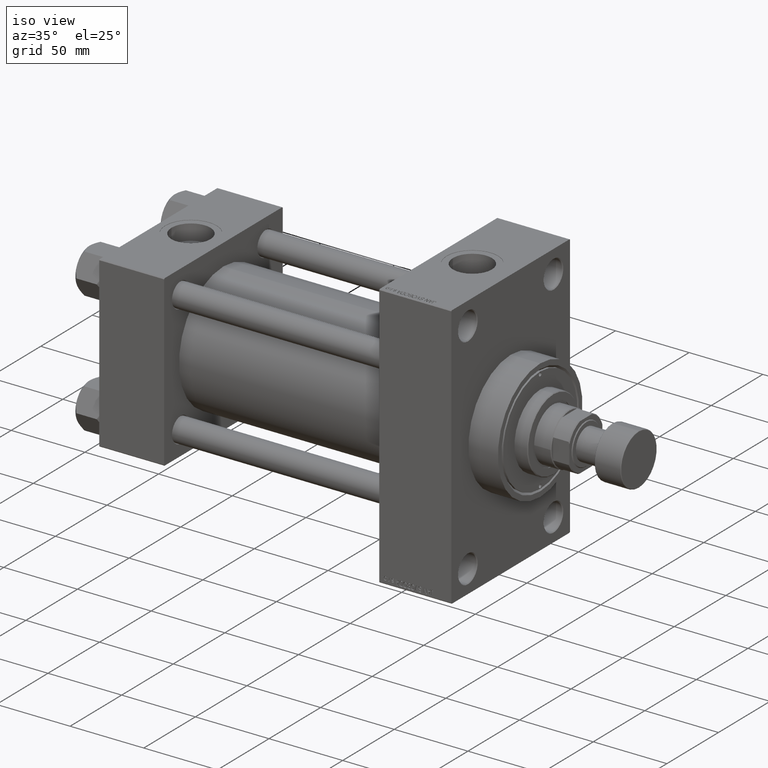
[diagram: clean part render]
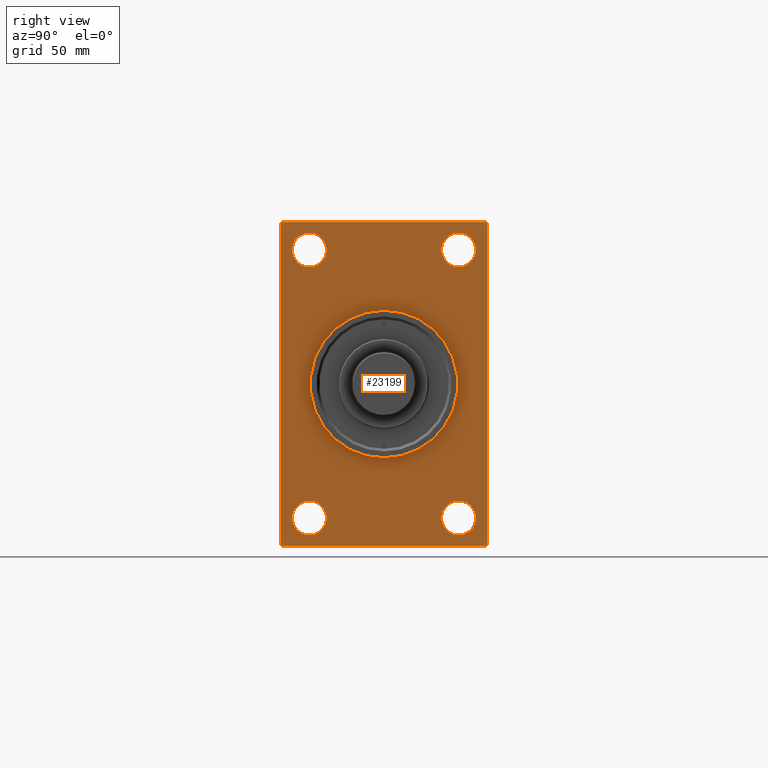
[diagram: tour spotlight — one face highlighted and labeled with its STEP entity id]
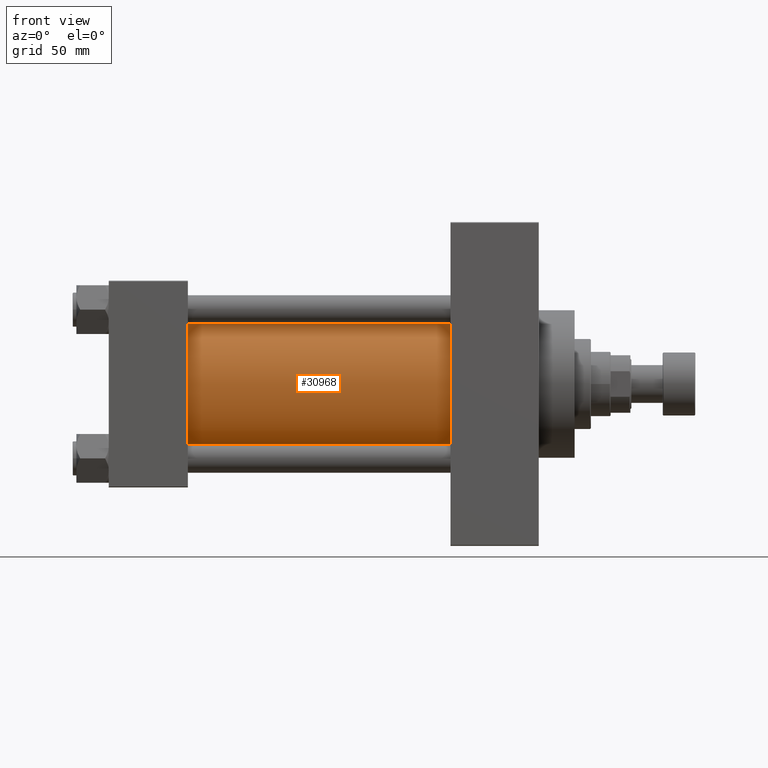
[diagram: tour spotlight — one face highlighted and labeled with its STEP entity id]
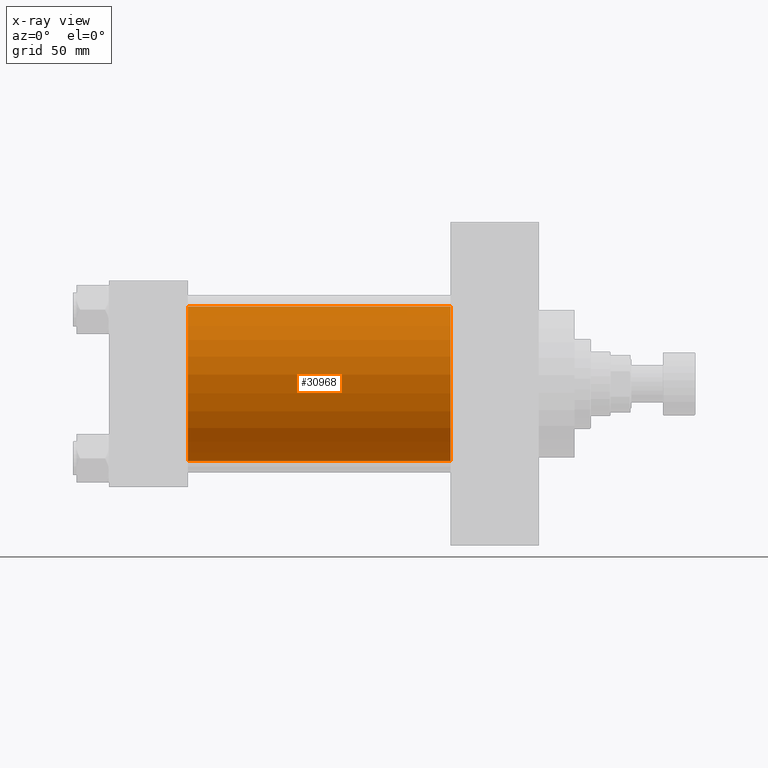
[diagram: x-ray of the same camera — body ghosted, this tour face saturated]
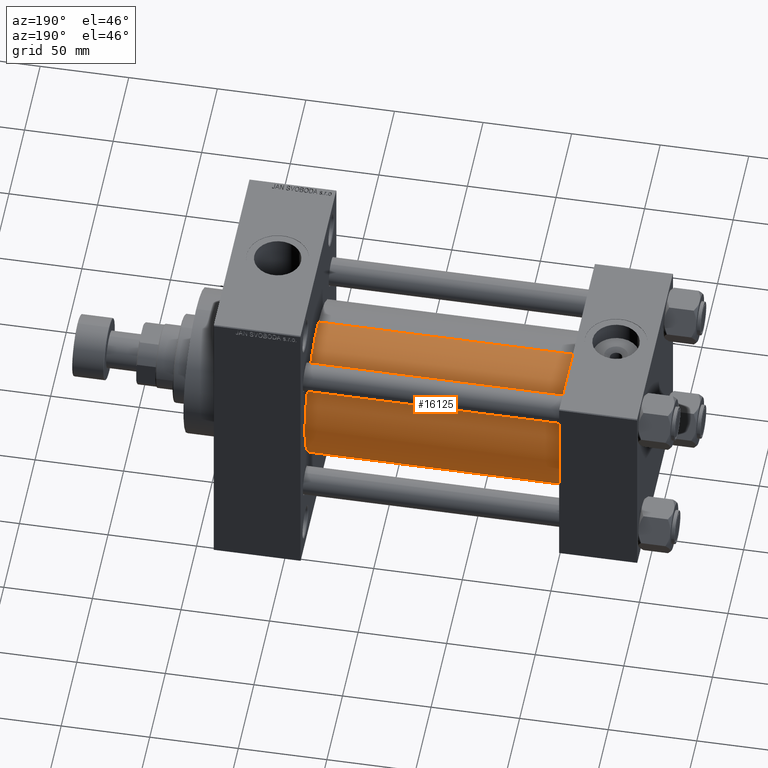
[diagram: tour spotlight — one face highlighted and labeled with its STEP entity id]
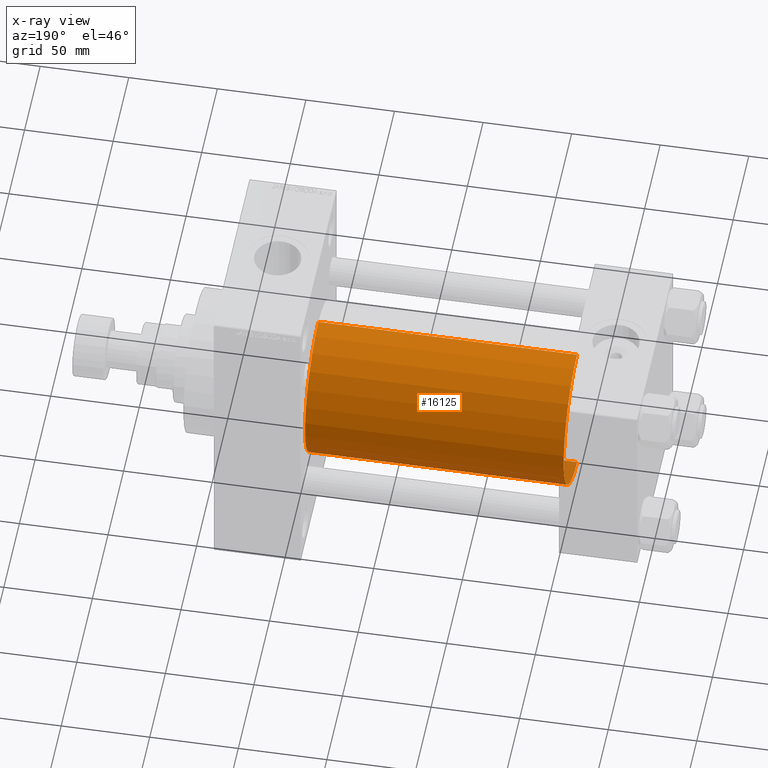
[diagram: x-ray of the same camera — body ghosted, this tour face saturated]
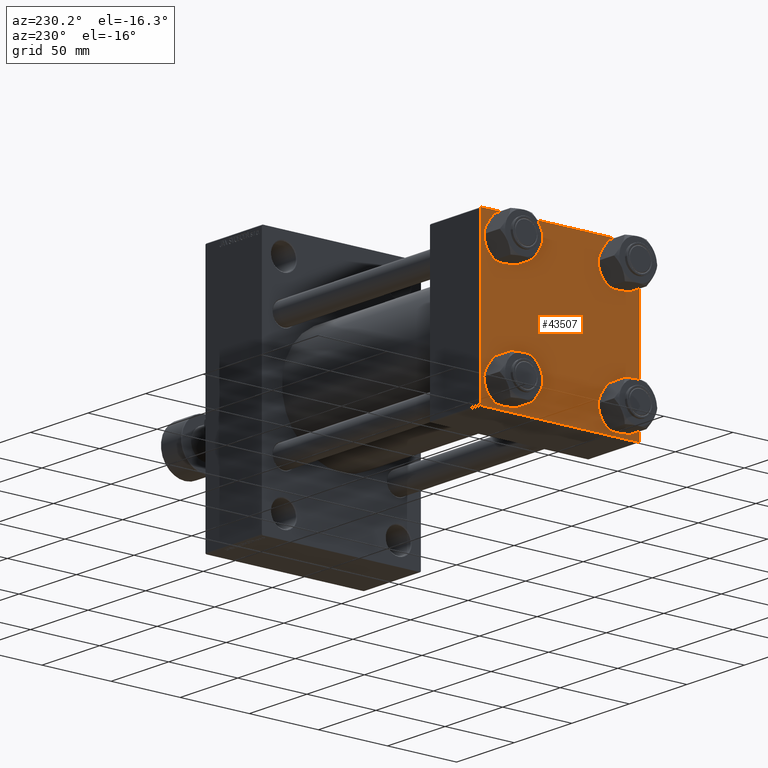
[diagram: tour spotlight — one face highlighted and labeled with its STEP entity id]
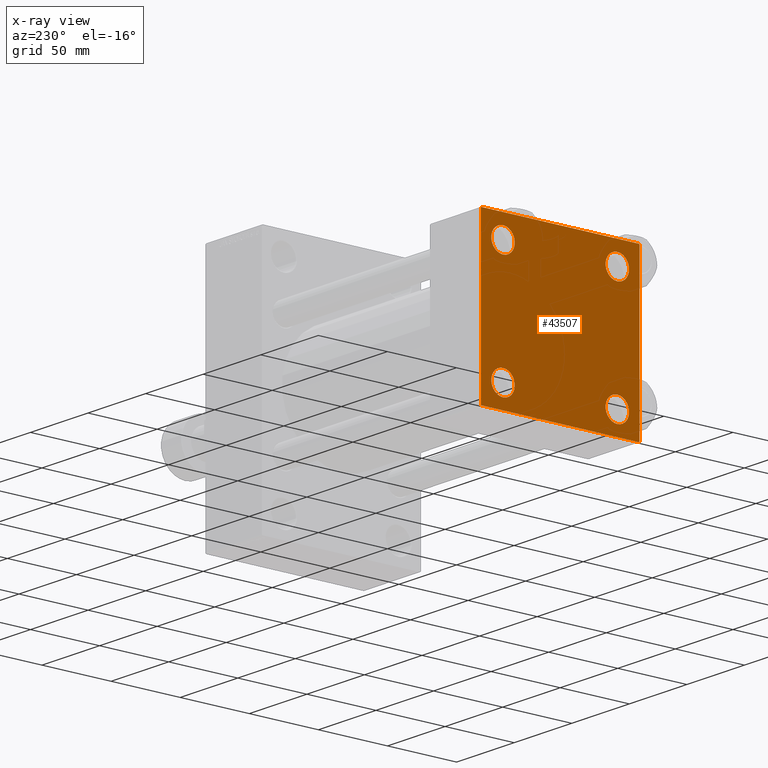
[diagram: x-ray of the same camera — body ghosted, this tour face saturated]
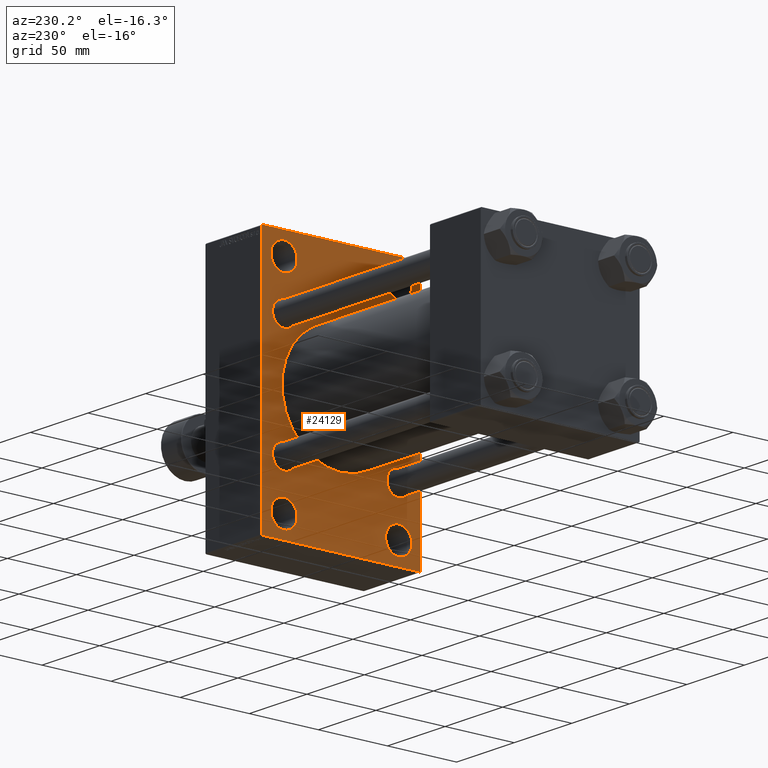
[diagram: tour spotlight — one face highlighted and labeled with its STEP entity id]
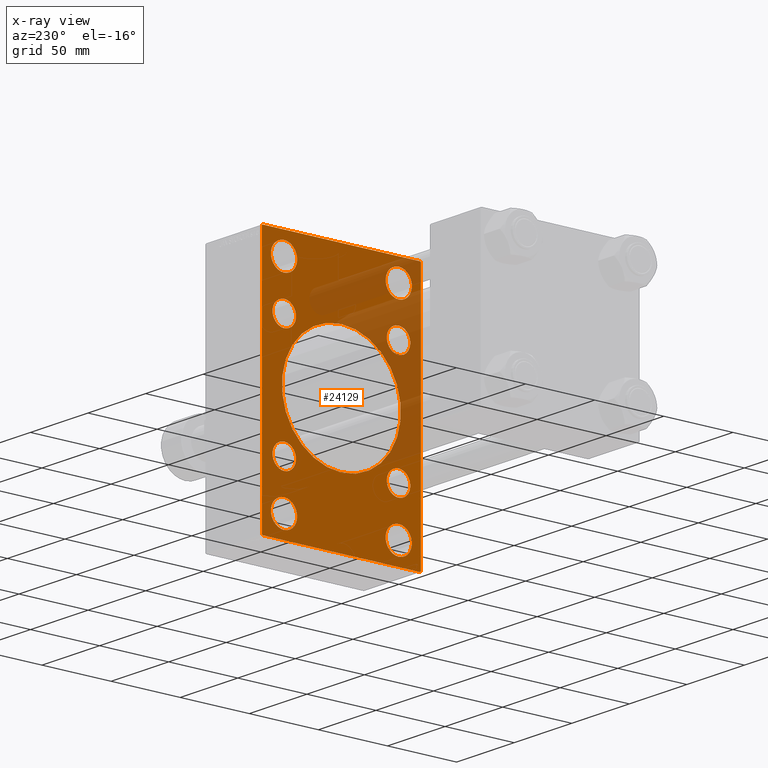
[diagram: x-ray of the same camera — body ghosted, this tour face saturated]
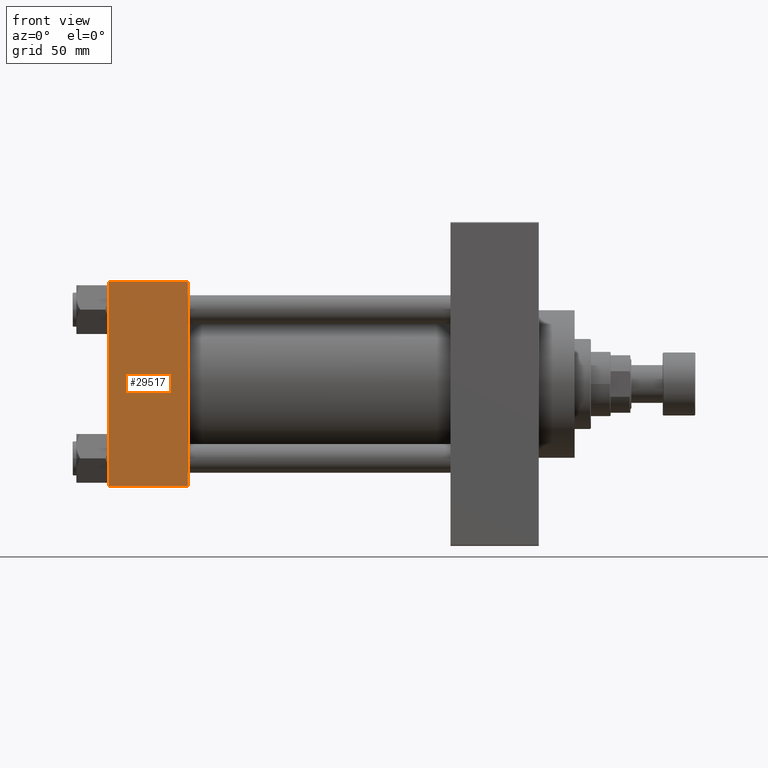
[diagram: tour spotlight — one face highlighted and labeled with its STEP entity id]
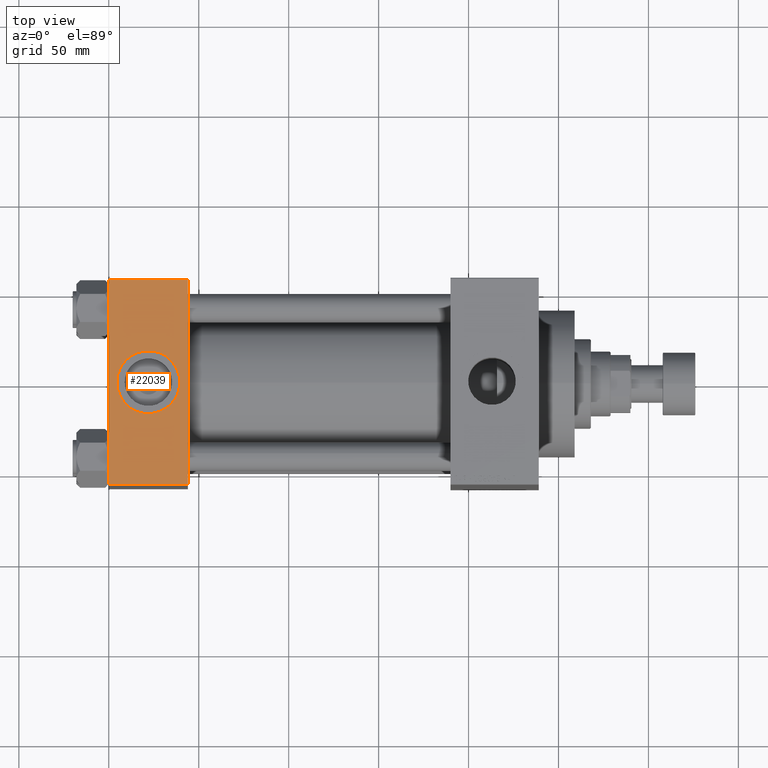
[diagram: tour spotlight — one face highlighted and labeled with its STEP entity id]
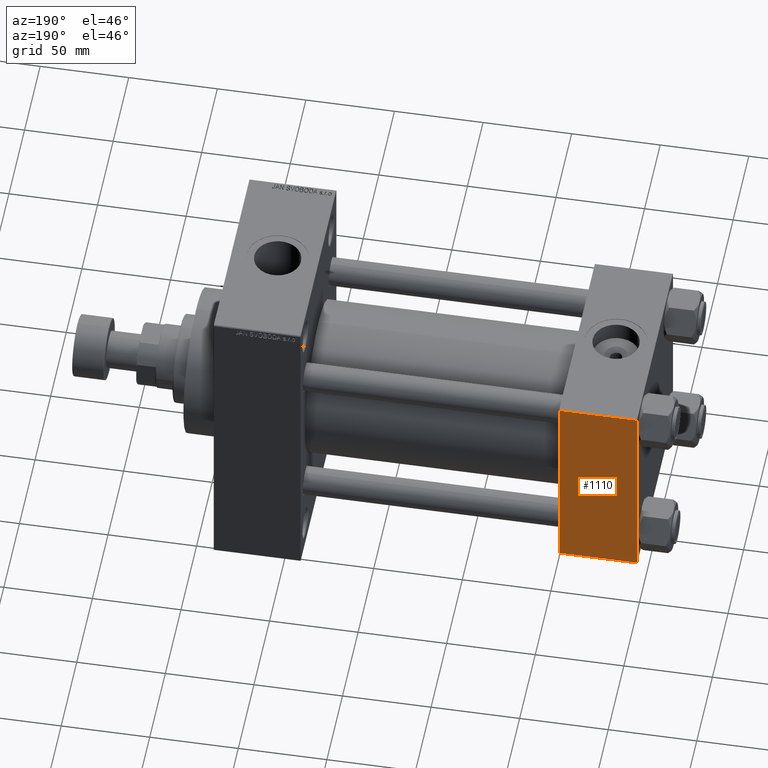
[diagram: tour spotlight — one face highlighted and labeled with its STEP entity id]
A machine part: a face-by-face anatomy tour. The part has 1173 B-rep faces; the first image is the clean iso view, then the 8 largest visible faces are spotlighted one at a time (largest first), each with its STEP entity span.

Face 1 — right view, entity #23199. In plain terms, the highlighted planar face has unit normal (-1, 0, 0).
Definition (entity closure, byte-faithful):
#139 = AXIS2_PLACEMENT_3D ( 'NONE', #31679, #46557, #13081 ) ;
#329 = DIRECTION ( 'NONE',  ( -0.000000000000000000, -0.7071067811865328068, -0.7071067811865622277 ) ) ;
#455 = FACE_BOUND ( 'NONE', #28556, .T. ) ;
#502 = VERTEX_POINT ( 'NONE', #23966 ) ;
#931 = LINE ( 'NONE', #38584, #33177 ) ;
#1379 = EDGE_CURVE ( 'NONE', #17991, #13035, #14496, .T. ) ;
#1532 = CARTESIAN_POINT ( 'NONE',  ( 239.0000000000000000, 57.00000000000002842, 89.99999999999998579 ) ) ;
#1985 = CIRCLE ( 'NONE', #40250, 41.00000000000000000 ) ;
#3647 = CARTESIAN_POINT ( 'NONE',  ( 239.0000000000000000, -41.49999999999999289, 65.00000000000000000 ) ) ;
#3875 = VERTEX_POINT ( 'NONE', #1532 ) ;
#4191 = CARTESIAN_POINT ( 'NONE',  ( 239.0000000000000000, 57.49999999999997868, -90.00000000000000000 ) ) ;
#4197 = DIRECTION ( 'NONE',  ( 0.000000000000000000, 0.7071067811865573427, -0.7071067811865378028 ) ) ;
#5601 = DIRECTION ( 'NONE',  ( 0.000000000000000000, 0.000000000000000000, 1.000000000000000000 ) ) ;
#5851 = CARTESIAN_POINT ( 'NONE',  ( 239.0000000000000000, 5.021051876504148963E-15, -41.00000000000000000 ) ) ;
#6667 = CARTESIAN_POINT ( 'NONE',  ( 239.0000000000000000, -41.49999999999999289, -74.49999999999998579 ) ) ;
#7012 = CARTESIAN_POINT ( 'NONE',  ( 239.0000000000000000, -57.00000000000001421, 89.99999999999997158 ) ) ;
#7288 = EDGE_CURVE ( 'NONE', #29947, #8493, #23568, .T. ) ;
#8014 = CARTESIAN_POINT ( 'NONE',  ( 239.0000000000000000, 0.000000000000000000, 41.00000000000000000 ) ) ;
#8040 = VERTEX_POINT ( 'NONE', #8014 ) ;
#8267 = FACE_BOUND ( 'NONE', #22753, .T. ) ;
#8315 = EDGE_LOOP ( 'NONE', ( #27357, #32497 ) ) ;
#8493 = VERTEX_POINT ( 'NONE', #27741 ) ;
#9795 = CIRCLE ( 'NONE', #9827, 41.00000000000000000 ) ;
#9827 = AXIS2_PLACEMENT_3D ( 'NONE', #14726, #11033, #11285 ) ;
#9992 = CARTESIAN_POINT ( 'NONE',  ( 239.0000000000000000, 57.49999999999997868, -89.49999999999990052 ) ) ;
#10210 = VERTEX_POINT ( 'NONE', #26490 ) ;
#10215 = EDGE_CURVE ( 'NONE', #32140, #19874, #45540, .T. ) ;
#10606 = DIRECTION ( 'NONE',  ( 0.000000000000000000, 0.000000000000000000, 1.000000000000000000 ) ) ;
#11033 = DIRECTION ( 'NONE',  ( 1.000000000000000000, 0.000000000000000000, 0.000000000000000000 ) ) ;
#11285 = DIRECTION ( 'NONE',  ( 0.000000000000000000, 0.000000000000000000, -1.000000000000000000 ) ) ;
#11432 = VERTEX_POINT ( 'NONE', #33430 ) ;
#12867 = ORIENTED_EDGE ( 'NONE', *, *, #31472, .T. ) ;
#13035 = VERTEX_POINT ( 'NONE', #46216 ) ;
#13081 = DIRECTION ( 'NONE',  ( 0.000000000000000000, 0.000000000000000000, 1.000000000000000000 ) ) ;
#13190 = DIRECTION ( 'NONE',  ( -1.000000000000000000, 0.000000000000000000, -0.000000000000000000 ) ) ;
#13367 = CIRCLE ( 'NONE', #21970, 9.500000000000008882 ) ;
#14496 = LINE ( 'NONE', #4191, #43617 ) ;
#14509 = AXIS2_PLACEMENT_3D ( 'NONE', #38487, #30680, #34840 ) ;
#14726 = CARTESIAN_POINT ( 'NONE',  ( 239.0000000000000000, 0.000000000000000000, 0.000000000000000000 ) ) ;
#14864 = ORIENTED_EDGE ( 'NONE', *, *, #40485, .T. ) ;
#14965 = VECTOR ( 'NONE', #41501, 1000.000000000000000 ) ;
#15020 = ORIENTED_EDGE ( 'NONE', *, *, #39475, .T. ) ;
#15622 = FACE_BOUND ( 'NONE', #17813, .T. ) ;
#15671 = ORIENTED_EDGE ( 'NONE', *, *, #42923, .T. ) ;
#15868 = PLANE ( 'NONE',  #37640 ) ;
#15872 = DIRECTION ( 'NONE',  ( 0.000000000000000000, -1.000000000000000000, -1.206764157201257291E-16 ) ) ;
#16275 = DIRECTION ( 'NONE',  ( -1.000000000000000000, 0.000000000000000000, -0.000000000000000000 ) ) ;
#16929 = VERTEX_POINT ( 'NONE', #36249 ) ;
#17058 = EDGE_CURVE ( 'NONE', #8040, #23076, #9795, .T. ) ;
#17544 = LINE ( 'NONE', #25082, #36912 ) ;
#17781 = DIRECTION ( 'NONE',  ( 0.000000000000000000, 3.854941057726238467E-17, -1.000000000000000000 ) ) ;
#17813 = EDGE_LOOP ( 'NONE', ( #30754, #15671 ) ) ;
#17926 = DIRECTION ( 'NONE',  ( -1.000000000000000000, 0.000000000000000000, -0.000000000000000000 ) ) ;
#17991 = VERTEX_POINT ( 'NONE', #21887 ) ;
#18902 = AXIS2_PLACEMENT_3D ( 'NONE', #23957, #13190, #5601 ) ;
#19294 = CARTESIAN_POINT ( 'NONE',  ( 239.0000000000000000, 0.000000000000000000, 0.000000000000000000 ) ) ;
#19405 = CARTESIAN_POINT ( 'NONE',  ( 239.0000000000000000, -57.50000000000002132, 89.49999999999994316 ) ) ;
#19788 = ORIENTED_EDGE ( 'NONE', *, *, #41934, .F. ) ;
#19874 = VERTEX_POINT ( 'NONE', #47544 ) ;
#20174 = CARTESIAN_POINT ( 'NONE',  ( 239.0000000000000000, 41.50000000000000711, -74.50000000000000000 ) ) ;
#20361 = CIRCLE ( 'NONE', #27374, 9.500000000000008882 ) ;
#20461 = CIRCLE ( 'NONE', #18902, 9.500000000000008882 ) ;
#20989 = ORIENTED_EDGE ( 'NONE', *, *, #10215, .T. ) ;
#21197 = AXIS2_PLACEMENT_3D ( 'NONE', #29072, #40080, #43247 ) ;
#21334 = EDGE_CURVE ( 'NONE', #11432, #43079, #13367, .T. ) ;
#21735 = EDGE_CURVE ( 'NONE', #31677, #23496, #30591, .T. ) ;
#21775 = VERTEX_POINT ( 'NONE', #9992 ) ;
#21887 = CARTESIAN_POINT ( 'NONE',  ( 239.0000000000000000, 56.99999999999995026, -90.00000000000000000 ) ) ;
#21970 = AXIS2_PLACEMENT_3D ( 'NONE', #44147, #47556, #34080 ) ;
#22701 = FACE_OUTER_BOUND ( 'NONE', #37366, .T. ) ;
#22753 = EDGE_LOOP ( 'NONE', ( #14864, #30026 ) ) ;
#22935 = VERTEX_POINT ( 'NONE', #23718 ) ;
#22949 = EDGE_CURVE ( 'NONE', #10210, #16929, #20461, .T. ) ;
#23076 = VERTEX_POINT ( 'NONE', #5851 ) ;
#23199 = ADVANCED_FACE ( 'NONE', ( #8267, #15622, #34203, #455, #45665, #22701 ), #15868, .F. ) ;
#23496 = VERTEX_POINT ( 'NONE', #37747 ) ;
#23568 = CIRCLE ( 'NONE', #29059, 9.500000000000008882 ) ;
#23718 = CARTESIAN_POINT ( 'NONE',  ( 239.0000000000000000, 57.49999999999997158, 89.50000000000004263 ) ) ;
#23957 = CARTESIAN_POINT ( 'NONE',  ( 239.0000000000000000, 41.50000000000000711, 74.50000000000001421 ) ) ;
#23959 = DIRECTION ( 'NONE',  ( 1.000000000000000000, 0.000000000000000000, 0.000000000000000000 ) ) ;
#23966 = CARTESIAN_POINT ( 'NONE',  ( 239.0000000000000000, -57.50000000000002132, -89.49999999999997158 ) ) ;
#25082 = CARTESIAN_POINT ( 'NONE',  ( 239.0000000000000000, 57.49999999999997158, 89.99999999999998579 ) ) ;
#26227 = CIRCLE ( 'NONE', #14509, 9.500000000000008882 ) ;
#26391 = ORIENTED_EDGE ( 'NONE', *, *, #29588, .T. ) ;
#26490 = CARTESIAN_POINT ( 'NONE',  ( 239.0000000000000000, 41.50000000000000711, 65.00000000000000000 ) ) ;
#26693 = LINE ( 'NONE', #27412, #33046 ) ;
#26861 = DIRECTION ( 'NONE',  ( -0.000000000000000000, 0.000000000000000000, 1.000000000000000000 ) ) ;
#27357 = ORIENTED_EDGE ( 'NONE', *, *, #37688, .T. ) ;
#27374 = AXIS2_PLACEMENT_3D ( 'NONE', #20174, #16275, #42159 ) ;
#27412 = CARTESIAN_POINT ( 'NONE',  ( 239.0000000000000000, -57.00000000000002132, -90.00000000000001421 ) ) ;
#27552 = VECTOR ( 'NONE', #329, 1000.000000000000000 ) ;
#27741 = CARTESIAN_POINT ( 'NONE',  ( 239.0000000000000000, 41.50000000000000711, -84.00000000000000000 ) ) ;
#28054 = ORIENTED_EDGE ( 'NONE', *, *, #43166, .T. ) ;
#28440 = CARTESIAN_POINT ( 'NONE',  ( 239.0000000000000000, -41.49999999999999289, -83.99999999999998579 ) ) ;
#28461 = CARTESIAN_POINT ( 'NONE',  ( 239.0000000000000000, 41.50000000000000711, -74.50000000000000000 ) ) ;
#28556 = EDGE_LOOP ( 'NONE', ( #44658, #12867 ) ) ;
#28800 = EDGE_LOOP ( 'NONE', ( #43217, #37411 ) ) ;
#29008 = DIRECTION ( 'NONE',  ( 0.000000000000000000, -0.7071067811865474617, 0.7071067811865474617 ) ) ;
#29054 = ORIENTED_EDGE ( 'NONE', *, *, #39371, .T. ) ;
#29059 = AXIS2_PLACEMENT_3D ( 'NONE', #28461, #44088, #10606 ) ;
#29072 = CARTESIAN_POINT ( 'NONE',  ( 239.0000000000000000, -41.49999999999999289, -74.49999999999998579 ) ) ;
#29588 = EDGE_CURVE ( 'NONE', #3875, #32140, #931, .T. ) ;
#29947 = VERTEX_POINT ( 'NONE', #43382 ) ;
#30026 = ORIENTED_EDGE ( 'NONE', *, *, #21334, .T. ) ;
#30591 = CIRCLE ( 'NONE', #21197, 9.500000000000008882 ) ;
#30680 = DIRECTION ( 'NONE',  ( -1.000000000000000000, 0.000000000000000000, -0.000000000000000000 ) ) ;
#30754 = ORIENTED_EDGE ( 'NONE', *, *, #21735, .T. ) ;
#31434 = VECTOR ( 'NONE', #29008, 1000.000000000000114 ) ;
#31472 = EDGE_CURVE ( 'NONE', #16929, #10210, #26227, .T. ) ;
#31677 = VERTEX_POINT ( 'NONE', #28440 ) ;
#31679 = CARTESIAN_POINT ( 'NONE',  ( 239.0000000000000000, -41.49999999999999289, 74.50000000000001421 ) ) ;
#31779 = LINE ( 'NONE', #35679, #39127 ) ;
#32140 = VERTEX_POINT ( 'NONE', #7012 ) ;
#32497 = ORIENTED_EDGE ( 'NONE', *, *, #7288, .T. ) ;
#33046 = VECTOR ( 'NONE', #4197, 1000.000000000000000 ) ;
#33177 = VECTOR ( 'NONE', #15872, 1000.000000000000000 ) ;
#33324 = DIRECTION ( 'NONE',  ( 0.000000000000000000, -1.000000000000000000, -1.206764157201257045E-16 ) ) ;
#33430 = CARTESIAN_POINT ( 'NONE',  ( 239.0000000000000000, -41.49999999999999289, 84.00000000000001421 ) ) ;
#34080 = DIRECTION ( 'NONE',  ( 0.000000000000000000, 0.000000000000000000, 1.000000000000000000 ) ) ;
#34203 = FACE_BOUND ( 'NONE', #8315, .T. ) ;
#34403 = ORIENTED_EDGE ( 'NONE', *, *, #1379, .F. ) ;
#34670 = LINE ( 'NONE', #38561, #14965 ) ;
#34840 = DIRECTION ( 'NONE',  ( 0.000000000000000000, 0.000000000000000000, 1.000000000000000000 ) ) ;
#34854 = EDGE_CURVE ( 'NONE', #23076, #8040, #1985, .T. ) ;
#35679 = CARTESIAN_POINT ( 'NONE',  ( 239.0000000000000000, -57.50000000000002132, 89.99999999999997158 ) ) ;
#36249 = CARTESIAN_POINT ( 'NONE',  ( 239.0000000000000000, 41.50000000000000711, 84.00000000000001421 ) ) ;
#36833 = CARTESIAN_POINT ( 'NONE',  ( 239.0000000000000000, 57.00000000000002842, 89.99999999999998579 ) ) ;
#36912 = VECTOR ( 'NONE', #17781, 1000.000000000000000 ) ;
#37366 = EDGE_LOOP ( 'NONE', ( #29054, #28054, #34403, #15020, #19788, #41747, #26391, #20989 ) ) ;
#37411 = ORIENTED_EDGE ( 'NONE', *, *, #34854, .F. ) ;
#37640 = AXIS2_PLACEMENT_3D ( 'NONE', #19294, #41774, #26861 ) ;
#37688 = EDGE_CURVE ( 'NONE', #8493, #29947, #20361, .T. ) ;
#37718 = AXIS2_PLACEMENT_3D ( 'NONE', #6667, #17926, #43571 ) ;
#37747 = CARTESIAN_POINT ( 'NONE',  ( 239.0000000000000000, -41.49999999999999289, -64.99999999999997158 ) ) ;
#38406 = CIRCLE ( 'NONE', #139, 9.500000000000008882 ) ;
#38487 = CARTESIAN_POINT ( 'NONE',  ( 239.0000000000000000, 41.50000000000000711, 74.50000000000001421 ) ) ;
#38561 = CARTESIAN_POINT ( 'NONE',  ( 239.0000000000000000, 57.49999999999997868, -89.49999999999995737 ) ) ;
#38584 = CARTESIAN_POINT ( 'NONE',  ( 239.0000000000000000, 57.49999999999997158, 89.99999999999998579 ) ) ;
#39127 = VECTOR ( 'NONE', #46650, 1000.000000000000000 ) ;
#39371 = EDGE_CURVE ( 'NONE', #19874, #502, #31779, .T. ) ;
#39475 = EDGE_CURVE ( 'NONE', #17991, #21775, #34670, .T. ) ;
#40080 = DIRECTION ( 'NONE',  ( -1.000000000000000000, 0.000000000000000000, -0.000000000000000000 ) ) ;
#40250 = AXIS2_PLACEMENT_3D ( 'NONE', #46438, #23959, #45950 ) ;
#40485 = EDGE_CURVE ( 'NONE', #43079, #11432, #38406, .T. ) ;
#41501 = DIRECTION ( 'NONE',  ( -0.000000000000000000, 0.7071067811865378028, 0.7071067811865573427 ) ) ;
#41747 = ORIENTED_EDGE ( 'NONE', *, *, #42029, .T. ) ;
#41774 = DIRECTION ( 'NONE',  ( -1.000000000000000000, 0.000000000000000000, -0.000000000000000000 ) ) ;
#41934 = EDGE_CURVE ( 'NONE', #22935, #21775, #17544, .T. ) ;
#42029 = EDGE_CURVE ( 'NONE', #22935, #3875, #48294, .T. ) ;
#42159 = DIRECTION ( 'NONE',  ( 0.000000000000000000, 0.000000000000000000, 1.000000000000000000 ) ) ;
#42923 = EDGE_CURVE ( 'NONE', #23496, #31677, #47851, .T. ) ;
#43079 = VERTEX_POINT ( 'NONE', #3647 ) ;
#43166 = EDGE_CURVE ( 'NONE', #502, #13035, #26693, .T. ) ;
#43217 = ORIENTED_EDGE ( 'NONE', *, *, #17058, .F. ) ;
#43247 = DIRECTION ( 'NONE',  ( 0.000000000000000000, 0.000000000000000000, 1.000000000000000000 ) ) ;
#43382 = CARTESIAN_POINT ( 'NONE',  ( 239.0000000000000000, 41.50000000000000711, -64.99999999999998579 ) ) ;
#43571 = DIRECTION ( 'NONE',  ( 0.000000000000000000, 0.000000000000000000, 1.000000000000000000 ) ) ;
#43617 = VECTOR ( 'NONE', #33324, 1000.000000000000000 ) ;
#44088 = DIRECTION ( 'NONE',  ( -1.000000000000000000, 0.000000000000000000, -0.000000000000000000 ) ) ;
#44147 = CARTESIAN_POINT ( 'NONE',  ( 239.0000000000000000, -41.49999999999999289, 74.50000000000001421 ) ) ;
#44658 = ORIENTED_EDGE ( 'NONE', *, *, #22949, .T. ) ;
#45540 = LINE ( 'NONE', #19405, #27552 ) ;
#45665 = FACE_BOUND ( 'NONE', #28800, .T. ) ;
#45950 = DIRECTION ( 'NONE',  ( 0.000000000000000000, 0.000000000000000000, -1.000000000000000000 ) ) ;
#46216 = CARTESIAN_POINT ( 'NONE',  ( 239.0000000000000000, -57.00000000000002132, -90.00000000000001421 ) ) ;
#46438 = CARTESIAN_POINT ( 'NONE',  ( 239.0000000000000000, 0.000000000000000000, 0.000000000000000000 ) ) ;
#46557 = DIRECTION ( 'NONE',  ( -1.000000000000000000, 0.000000000000000000, -0.000000000000000000 ) ) ;
#46650 = DIRECTION ( 'NONE',  ( 0.000000000000000000, 0.000000000000000000, -1.000000000000000000 ) ) ;
#47544 = CARTESIAN_POINT ( 'NONE',  ( 239.0000000000000000, -57.50000000000002132, 89.49999999999994316 ) ) ;
#47556 = DIRECTION ( 'NONE',  ( -1.000000000000000000, 0.000000000000000000, -0.000000000000000000 ) ) ;
#47851 = CIRCLE ( 'NONE', #37718, 9.500000000000008882 ) ;
#48294 = LINE ( 'NONE', #36833, #31434 ) ;

Face 2 — front view, entity #30968. An x-ray twin of the same camera follows (body ghosted, this face saturated) — the face is partly hidden behind the body. In plain terms, the highlighted cylindrical surface (partial cylindrical patch) has radius 43 mm, axis along (-1, -0, -0).
Definition (entity closure, byte-faithful):
#318 = CARTESIAN_POINT ( 'NONE',  ( 190.0000000000000000, 2.663896022368408223E-15, -43.00000000000000000 ) ) ;
#1170 = CARTESIAN_POINT ( 'NONE',  ( 190.0000000000000000, -2.602085213965210642E-15, 43.00000000000000000 ) ) ;
#2578 = AXIS2_PLACEMENT_3D ( 'NONE', #45313, #48265, #14801 ) ;
#2661 = AXIS2_PLACEMENT_3D ( 'NONE', #28122, #24455, #16414 ) ;
#3226 = CYLINDRICAL_SURFACE ( 'NONE', #46477, 43.00000000000000000 ) ;
#4253 = CARTESIAN_POINT ( 'NONE',  ( 43.99999999999998579, -2.602085213965210642E-15, 43.00000000000000000 ) ) ;
#4994 = CIRCLE ( 'NONE', #2661, 43.00000000000000000 ) ;
#6404 = DIRECTION ( 'NONE',  ( -1.000000000000000000, -0.000000000000000000, -0.000000000000000000 ) ) ;
#7923 = EDGE_CURVE ( 'NONE', #41484, #11823, #27324, .T. ) ;
#8518 = ORIENTED_EDGE ( 'NONE', *, *, #7923, .T. ) ;
#8727 = VECTOR ( 'NONE', #45410, 1000.000000000000000 ) ;
#9466 = VERTEX_POINT ( 'NONE', #27746 ) ;
#9624 = EDGE_CURVE ( 'NONE', #28434, #9466, #22361, .T. ) ;
#11823 = VERTEX_POINT ( 'NONE', #4253 ) ;
#13510 = CIRCLE ( 'NONE', #2578, 43.00000000000000000 ) ;
#13822 = ORIENTED_EDGE ( 'NONE', *, *, #45240, .T. ) ;
#14801 = DIRECTION ( 'NONE',  ( 0.000000000000000000, 0.000000000000000000, -1.000000000000000000 ) ) ;
#14861 = EDGE_LOOP ( 'NONE', ( #24411, #33148, #8518, #13822 ) ) ;
#16414 = DIRECTION ( 'NONE',  ( 0.000000000000000000, 0.000000000000000000, 1.000000000000000000 ) ) ;
#22361 = LINE ( 'NONE', #318, #26790 ) ;
#24411 = ORIENTED_EDGE ( 'NONE', *, *, #9624, .F. ) ;
#24455 = DIRECTION ( 'NONE',  ( 1.000000000000000000, -0.000000000000000000, 0.000000000000000000 ) ) ;
#24985 = DIRECTION ( 'NONE',  ( 0.000000000000000000, 0.000000000000000000, 1.000000000000000000 ) ) ;
#25465 = EDGE_CURVE ( 'NONE', #41484, #28434, #13510, .T. ) ;
#26790 = VECTOR ( 'NONE', #30402, 1000.000000000000000 ) ;
#27324 = LINE ( 'NONE', #1170, #8727 ) ;
#27746 = CARTESIAN_POINT ( 'NONE',  ( 43.99999999999998579, 2.663896022368408223E-15, -43.00000000000000000 ) ) ;
#28122 = CARTESIAN_POINT ( 'NONE',  ( 43.99999999999998579, -2.602085213965210642E-15, 0.000000000000000000 ) ) ;
#28434 = VERTEX_POINT ( 'NONE', #45413 ) ;
#29414 = FACE_OUTER_BOUND ( 'NONE', #14861, .T. ) ;
#30402 = DIRECTION ( 'NONE',  ( -1.000000000000000000, -0.000000000000000000, -0.000000000000000000 ) ) ;
#30968 = ADVANCED_FACE ( 'NONE', ( #29414 ), #3226, .T. ) ;
#33148 = ORIENTED_EDGE ( 'NONE', *, *, #25465, .F. ) ;
#38152 = CARTESIAN_POINT ( 'NONE',  ( 190.0000000000000000, -2.602085213965210642E-15, 43.00000000000000000 ) ) ;
#41484 = VERTEX_POINT ( 'NONE', #38152 ) ;
#44054 = CARTESIAN_POINT ( 'NONE',  ( 190.0000000000000000, -2.602085213965210642E-15, 0.000000000000000000 ) ) ;
#45240 = EDGE_CURVE ( 'NONE', #11823, #9466, #4994, .T. ) ;
#45313 = CARTESIAN_POINT ( 'NONE',  ( 190.0000000000000000, -2.602085213965210642E-15, 0.000000000000000000 ) ) ;
#45410 = DIRECTION ( 'NONE',  ( -1.000000000000000000, -0.000000000000000000, -0.000000000000000000 ) ) ;
#45413 = CARTESIAN_POINT ( 'NONE',  ( 190.0000000000000000, 2.663896022368408223E-15, -43.00000000000000000 ) ) ;
#46477 = AXIS2_PLACEMENT_3D ( 'NONE', #44054, #6404, #24985 ) ;
#48265 = DIRECTION ( 'NONE',  ( 1.000000000000000000, 0.000000000000000000, 0.000000000000000000 ) ) ;

Face 3 — auxiliary view, entity #16125. An x-ray twin of the same camera follows (body ghosted, this face saturated) — the face is partly hidden behind the body. In plain terms, the highlighted cylindrical surface (partial cylindrical patch) has radius 43 mm, axis along (-1, -0, -0).
Definition (entity closure, byte-faithful):
#318 = CARTESIAN_POINT ( 'NONE',  ( 190.0000000000000000, 2.663896022368408223E-15, -43.00000000000000000 ) ) ;
#1170 = CARTESIAN_POINT ( 'NONE',  ( 190.0000000000000000, -2.602085213965210642E-15, 43.00000000000000000 ) ) ;
#1557 = ORIENTED_EDGE ( 'NONE', *, *, #45407, .T. ) ;
#1627 = CARTESIAN_POINT ( 'NONE',  ( 190.0000000000000000, -2.602085213965210642E-15, 0.000000000000000000 ) ) ;
#2574 = DIRECTION ( 'NONE',  ( 0.000000000000000000, 0.000000000000000000, -1.000000000000000000 ) ) ;
#3782 = ORIENTED_EDGE ( 'NONE', *, *, #9624, .T. ) ;
#4253 = CARTESIAN_POINT ( 'NONE',  ( 43.99999999999998579, -2.602085213965210642E-15, 43.00000000000000000 ) ) ;
#5061 = CYLINDRICAL_SURFACE ( 'NONE', #28416, 43.00000000000000000 ) ;
#5481 = EDGE_CURVE ( 'NONE', #28434, #41484, #35196, .T. ) ;
#7923 = EDGE_CURVE ( 'NONE', #41484, #11823, #27324, .T. ) ;
#7995 = ORIENTED_EDGE ( 'NONE', *, *, #5481, .F. ) ;
#8008 = FACE_OUTER_BOUND ( 'NONE', #16336, .T. ) ;
#8727 = VECTOR ( 'NONE', #45410, 1000.000000000000000 ) ;
#9466 = VERTEX_POINT ( 'NONE', #27746 ) ;
#9624 = EDGE_CURVE ( 'NONE', #28434, #9466, #22361, .T. ) ;
#11366 = ORIENTED_EDGE ( 'NONE', *, *, #7923, .F. ) ;
#11823 = VERTEX_POINT ( 'NONE', #4253 ) ;
#14115 = AXIS2_PLACEMENT_3D ( 'NONE', #47310, #29482, #2574 ) ;
#15856 = DIRECTION ( 'NONE',  ( 0.000000000000000000, 0.000000000000000000, 1.000000000000000000 ) ) ;
#16125 = ADVANCED_FACE ( 'NONE', ( #8008 ), #5061, .T. ) ;
#16336 = EDGE_LOOP ( 'NONE', ( #7995, #3782, #1557, #11366 ) ) ;
#22195 = CIRCLE ( 'NONE', #47920, 43.00000000000000000 ) ;
#22361 = LINE ( 'NONE', #318, #26790 ) ;
#22496 = DIRECTION ( 'NONE',  ( 0.000000000000000000, 0.000000000000000000, 1.000000000000000000 ) ) ;
#26790 = VECTOR ( 'NONE', #30402, 1000.000000000000000 ) ;
#27324 = LINE ( 'NONE', #1170, #8727 ) ;
#27746 = CARTESIAN_POINT ( 'NONE',  ( 43.99999999999998579, 2.663896022368408223E-15, -43.00000000000000000 ) ) ;
#28416 = AXIS2_PLACEMENT_3D ( 'NONE', #1627, #46113, #15856 ) ;
#28434 = VERTEX_POINT ( 'NONE', #45413 ) ;
#29482 = DIRECTION ( 'NONE',  ( 1.000000000000000000, 0.000000000000000000, 0.000000000000000000 ) ) ;
#29584 = DIRECTION ( 'NONE',  ( 1.000000000000000000, -0.000000000000000000, 0.000000000000000000 ) ) ;
#30402 = DIRECTION ( 'NONE',  ( -1.000000000000000000, -0.000000000000000000, -0.000000000000000000 ) ) ;
#30548 = CARTESIAN_POINT ( 'NONE',  ( 43.99999999999998579, -2.602085213965210642E-15, 0.000000000000000000 ) ) ;
#35196 = CIRCLE ( 'NONE', #14115, 43.00000000000000000 ) ;
#38152 = CARTESIAN_POINT ( 'NONE',  ( 190.0000000000000000, -2.602085213965210642E-15, 43.00000000000000000 ) ) ;
#41484 = VERTEX_POINT ( 'NONE', #38152 ) ;
#45407 = EDGE_CURVE ( 'NONE', #9466, #11823, #22195, .T. ) ;
#45410 = DIRECTION ( 'NONE',  ( -1.000000000000000000, -0.000000000000000000, -0.000000000000000000 ) ) ;
#45413 = CARTESIAN_POINT ( 'NONE',  ( 190.0000000000000000, 2.663896022368408223E-15, -43.00000000000000000 ) ) ;
#46113 = DIRECTION ( 'NONE',  ( -1.000000000000000000, -0.000000000000000000, -0.000000000000000000 ) ) ;
#47310 = CARTESIAN_POINT ( 'NONE',  ( 190.0000000000000000, -2.602085213965210642E-15, 0.000000000000000000 ) ) ;
#47920 = AXIS2_PLACEMENT_3D ( 'NONE', #30548, #29584, #22496 ) ;

Face 4 — auxiliary view, entity #43507. An x-ray twin of the same camera follows (body ghosted, this face saturated) — the face is partly hidden behind the body. In plain terms, the highlighted planar face has unit normal (-1, 0, 0).
Definition (entity closure, byte-faithful):
#379 = FACE_BOUND ( 'NONE', #2300, .T. ) ;
#748 = DIRECTION ( 'NONE',  ( -1.000000000000000000, 0.000000000000000000, -0.000000000000000000 ) ) ;
#762 = CARTESIAN_POINT ( 'NONE',  ( 0.000000000000000000, 41.34999999999999432, -41.35000000000000142 ) ) ;
#781 = ORIENTED_EDGE ( 'NONE', *, *, #22253, .T. ) ;
#999 = DIRECTION ( 'NONE',  ( 1.000000000000000000, -0.000000000000000000, 0.000000000000000000 ) ) ;
#2300 = EDGE_LOOP ( 'NONE', ( #781, #26158 ) ) ;
#2456 = ORIENTED_EDGE ( 'NONE', *, *, #25654, .T. ) ;
#2989 = DIRECTION ( 'NONE',  ( 0.000000000000000000, -0.7071067811865474617, 0.7071067811865474617 ) ) ;
#3246 = AXIS2_PLACEMENT_3D ( 'NONE', #32453, #10166, #25083 ) ;
#3293 = CIRCLE ( 'NONE', #45440, 8.499999999999992895 ) ;
#3918 = EDGE_LOOP ( 'NONE', ( #45979, #7049 ) ) ;
#4859 = ORIENTED_EDGE ( 'NONE', *, *, #21600, .T. ) ;
#5331 = VERTEX_POINT ( 'NONE', #10988 ) ;
#5455 = DIRECTION ( 'NONE',  ( 1.000000000000000000, -0.000000000000000000, 0.000000000000000000 ) ) ;
#5569 = CIRCLE ( 'NONE', #3246, 8.499999999999992895 ) ;
#5919 = AXIS2_PLACEMENT_3D ( 'NONE', #23024, #999, #45236 ) ;
#5943 = CARTESIAN_POINT ( 'NONE',  ( 0.000000000000000000, -57.25000000000000711, -57.25000000000000711 ) ) ;
#6548 = EDGE_LOOP ( 'NONE', ( #28912, #47897 ) ) ;
#6653 = VERTEX_POINT ( 'NONE', #26420 ) ;
#6740 = CARTESIAN_POINT ( 'NONE',  ( 0.000000000000000000, 41.34999999999999432, 32.85000000000000853 ) ) ;
#7049 = ORIENTED_EDGE ( 'NONE', *, *, #38630, .T. ) ;
#7281 = VECTOR ( 'NONE', #19948, 1000.000000000000114 ) ;
#7689 = DIRECTION ( 'NONE',  ( 1.000000000000000000, -0.000000000000000000, 0.000000000000000000 ) ) ;
#8100 = AXIS2_PLACEMENT_3D ( 'NONE', #25012, #37010, #10098 ) ;
#8362 = EDGE_CURVE ( 'NONE', #36131, #32900, #3293, .T. ) ;
#9450 = AXIS2_PLACEMENT_3D ( 'NONE', #27132, #12454, #31048 ) ;
#10098 = DIRECTION ( 'NONE',  ( 0.000000000000000000, 0.000000000000000000, 1.000000000000000000 ) ) ;
#10166 = DIRECTION ( 'NONE',  ( 1.000000000000000000, -0.000000000000000000, 0.000000000000000000 ) ) ;
#10437 = CIRCLE ( 'NONE', #8100, 8.499999999999992895 ) ;
#10934 = VERTEX_POINT ( 'NONE', #39027 ) ;
#10988 = CARTESIAN_POINT ( 'NONE',  ( 0.000000000000000000, 41.34999999999999432, 49.85000000000000142 ) ) ;
#11093 = CARTESIAN_POINT ( 'NONE',  ( 0.000000000000000000, 41.34999999999999432, -49.85000000000000142 ) ) ;
#11198 = DIRECTION ( 'NONE',  ( 0.000000000000000000, 0.000000000000000000, 1.000000000000000000 ) ) ;
#11409 = DIRECTION ( 'NONE',  ( 0.000000000000000000, 0.7071067811865573427, -0.7071067811865376918 ) ) ;
#11863 = CARTESIAN_POINT ( 'NONE',  ( 0.000000000000000000, 57.00000000000000711, 57.50000000000000711 ) ) ;
#11969 = CARTESIAN_POINT ( 'NONE',  ( 0.000000000000000000, -41.34999999999998721, 49.85000000000000853 ) ) ;
#12183 = DIRECTION ( 'NONE',  ( 0.000000000000000000, -1.000000000000000000, -1.206764157201257045E-16 ) ) ;
#12454 = DIRECTION ( 'NONE',  ( 1.000000000000000000, -0.000000000000000000, 0.000000000000000000 ) ) ;
#13059 = CARTESIAN_POINT ( 'NONE',  ( 0.000000000000000000, 41.34999999999999432, 41.35000000000000142 ) ) ;
#14114 = CIRCLE ( 'NONE', #9450, 8.499999999999992895 ) ;
#14116 = VERTEX_POINT ( 'NONE', #11969 ) ;
#14374 = CIRCLE ( 'NONE', #26090, 8.499999999999992895 ) ;
#14455 = CARTESIAN_POINT ( 'NONE',  ( 0.000000000000000000, -57.00000000000003553, 57.49999999999999289 ) ) ;
#14503 = ORIENTED_EDGE ( 'NONE', *, *, #45168, .T. ) ;
#14957 = VECTOR ( 'NONE', #19104, 1000.000000000000000 ) ;
#15549 = FACE_BOUND ( 'NONE', #3918, .T. ) ;
#15576 = EDGE_CURVE ( 'NONE', #45751, #14116, #10437, .T. ) ;
#15974 = CARTESIAN_POINT ( 'NONE',  ( 0.000000000000000000, -41.34999999999998721, -49.85000000000000853 ) ) ;
#16027 = AXIS2_PLACEMENT_3D ( 'NONE', #33954, #18553, #11198 ) ;
#16407 = ORIENTED_EDGE ( 'NONE', *, *, #45606, .F. ) ;
#16464 = VERTEX_POINT ( 'NONE', #11863 ) ;
#17162 = EDGE_CURVE ( 'NONE', #5331, #21321, #27780, .T. ) ;
#17326 = DIRECTION ( 'NONE',  ( 0.000000000000000000, 0.000000000000000000, -1.000000000000000000 ) ) ;
#18293 = CARTESIAN_POINT ( 'NONE',  ( 0.000000000000000000, -41.34999999999998721, 32.85000000000001563 ) ) ;
#18553 = DIRECTION ( 'NONE',  ( 1.000000000000000000, -0.000000000000000000, 0.000000000000000000 ) ) ;
#19104 = DIRECTION ( 'NONE',  ( 0.000000000000000000, 0.000000000000000000, -1.000000000000000000 ) ) ;
#19517 = CARTESIAN_POINT ( 'NONE',  ( 0.000000000000000000, 57.49999999999999289, 57.50000000000000711 ) ) ;
#19604 = ORIENTED_EDGE ( 'NONE', *, *, #23642, .T. ) ;
#19639 = VERTEX_POINT ( 'NONE', #14455 ) ;
#19948 = DIRECTION ( 'NONE',  ( -0.000000000000000000, 0.7071067811865376918, 0.7071067811865573427 ) ) ;
#20965 = CARTESIAN_POINT ( 'NONE',  ( 0.000000000000000000, -57.00000000000000711, -57.50000000000000711 ) ) ;
#21295 = ORIENTED_EDGE ( 'NONE', *, *, #39666, .T. ) ;
#21321 = VERTEX_POINT ( 'NONE', #6740 ) ;
#21600 = EDGE_CURVE ( 'NONE', #6653, #28305, #26425, .T. ) ;
#22253 = EDGE_CURVE ( 'NONE', #14116, #45751, #5569, .T. ) ;
#22643 = ORIENTED_EDGE ( 'NONE', *, *, #27623, .T. ) ;
#23024 = CARTESIAN_POINT ( 'NONE',  ( 0.000000000000000000, 41.34999999999999432, 41.35000000000000142 ) ) ;
#23184 = LINE ( 'NONE', #19517, #47006 ) ;
#23573 = ORIENTED_EDGE ( 'NONE', *, *, #34132, .T. ) ;
#23642 = EDGE_CURVE ( 'NONE', #30710, #34563, #46011, .T. ) ;
#23785 = DIRECTION ( 'NONE',  ( 0.000000000000000000, -1.000000000000000000, -1.206764157201257045E-16 ) ) ;
#25012 = CARTESIAN_POINT ( 'NONE',  ( 0.000000000000000000, -41.34999999999998721, 41.35000000000000853 ) ) ;
#25083 = DIRECTION ( 'NONE',  ( 0.000000000000000000, 0.000000000000000000, 1.000000000000000000 ) ) ;
#25119 = CARTESIAN_POINT ( 'NONE',  ( 0.000000000000000000, -57.50000000000000711, 57.49999999999999289 ) ) ;
#25316 = VECTOR ( 'NONE', #17326, 1000.000000000000000 ) ;
#25595 = CARTESIAN_POINT ( 'NONE',  ( 0.000000000000000000, 57.24999999999922551, 57.25000000000081712 ) ) ;
#25654 = EDGE_CURVE ( 'NONE', #10934, #19639, #38510, .T. ) ;
#25884 = CARTESIAN_POINT ( 'NONE',  ( 0.000000000000000000, 57.49999999999999289, -57.00000000000000711 ) ) ;
#26090 = AXIS2_PLACEMENT_3D ( 'NONE', #762, #41603, #37227 ) ;
#26158 = ORIENTED_EDGE ( 'NONE', *, *, #15576, .T. ) ;
#26161 = CIRCLE ( 'NONE', #16027, 8.499999999999992895 ) ;
#26420 = CARTESIAN_POINT ( 'NONE',  ( 0.000000000000000000, 57.49999999999999289, 57.00000000000003553 ) ) ;
#26425 = LINE ( 'NONE', #33302, #14957 ) ;
#26671 = PLANE ( 'NONE',  #26789 ) ;
#26789 = AXIS2_PLACEMENT_3D ( 'NONE', #42300, #748, #38164 ) ;
#26822 = CARTESIAN_POINT ( 'NONE',  ( 0.000000000000000000, 57.25000000000081712, -57.24999999999922551 ) ) ;
#27132 = CARTESIAN_POINT ( 'NONE',  ( 0.000000000000000000, -41.34999999999998721, -41.35000000000000853 ) ) ;
#27390 = VERTEX_POINT ( 'NONE', #31973 ) ;
#27623 = EDGE_CURVE ( 'NONE', #16464, #6653, #48314, .T. ) ;
#27780 = CIRCLE ( 'NONE', #5919, 8.499999999999992895 ) ;
#27828 = EDGE_LOOP ( 'NONE', ( #4859, #23573, #19604, #21295, #16407, #2456, #44361, #22643 ) ) ;
#27961 = DIRECTION ( 'NONE',  ( 0.000000000000000000, 0.000000000000000000, 1.000000000000000000 ) ) ;
#28305 = VERTEX_POINT ( 'NONE', #25884 ) ;
#28912 = ORIENTED_EDGE ( 'NONE', *, *, #17162, .T. ) ;
#30700 = FACE_BOUND ( 'NONE', #6548, .T. ) ;
#30710 = VERTEX_POINT ( 'NONE', #48262 ) ;
#31048 = DIRECTION ( 'NONE',  ( 0.000000000000000000, 0.000000000000000000, 1.000000000000000000 ) ) ;
#31973 = CARTESIAN_POINT ( 'NONE',  ( 0.000000000000000000, 41.34999999999999432, -32.85000000000000853 ) ) ;
#32453 = CARTESIAN_POINT ( 'NONE',  ( 0.000000000000000000, -41.34999999999998721, 41.35000000000000853 ) ) ;
#32900 = VERTEX_POINT ( 'NONE', #15974 ) ;
#33302 = CARTESIAN_POINT ( 'NONE',  ( 0.000000000000000000, 57.49999999999999289, 57.50000000000000711 ) ) ;
#33892 = CARTESIAN_POINT ( 'NONE',  ( 0.000000000000000000, -41.34999999999998721, -41.35000000000000853 ) ) ;
#33954 = CARTESIAN_POINT ( 'NONE',  ( 0.000000000000000000, 41.34999999999999432, -41.35000000000000142 ) ) ;
#33961 = CIRCLE ( 'NONE', #41725, 8.499999999999992895 ) ;
#34132 = EDGE_CURVE ( 'NONE', #28305, #30710, #34895, .T. ) ;
#34563 = VERTEX_POINT ( 'NONE', #20965 ) ;
#34895 = LINE ( 'NONE', #26822, #35571 ) ;
#35226 = VECTOR ( 'NONE', #2989, 1000.000000000000114 ) ;
#35571 = VECTOR ( 'NONE', #38539, 1000.000000000000114 ) ;
#36131 = VERTEX_POINT ( 'NONE', #36573 ) ;
#36163 = CARTESIAN_POINT ( 'NONE',  ( 0.000000000000000000, -57.50000000000000711, -57.00000000000000711 ) ) ;
#36573 = CARTESIAN_POINT ( 'NONE',  ( 0.000000000000000000, -41.34999999999998721, -32.85000000000001563 ) ) ;
#37010 = DIRECTION ( 'NONE',  ( 1.000000000000000000, -0.000000000000000000, 0.000000000000000000 ) ) ;
#37075 = FACE_OUTER_BOUND ( 'NONE', #27828, .T. ) ;
#37227 = DIRECTION ( 'NONE',  ( 0.000000000000000000, 0.000000000000000000, 1.000000000000000000 ) ) ;
#38164 = DIRECTION ( 'NONE',  ( -0.000000000000000000, 0.000000000000000000, 1.000000000000000000 ) ) ;
#38510 = LINE ( 'NONE', #42408, #7281 ) ;
#38539 = DIRECTION ( 'NONE',  ( -0.000000000000000000, -0.7071067811865376918, -0.7071067811865573427 ) ) ;
#38630 = EDGE_CURVE ( 'NONE', #32900, #36131, #14114, .T. ) ;
#38911 = ORIENTED_EDGE ( 'NONE', *, *, #47307, .T. ) ;
#39027 = CARTESIAN_POINT ( 'NONE',  ( 0.000000000000000000, -57.50000000000000711, 57.00000000000000711 ) ) ;
#39666 = EDGE_CURVE ( 'NONE', #34563, #47181, #43567, .T. ) ;
#41603 = DIRECTION ( 'NONE',  ( 1.000000000000000000, -0.000000000000000000, 0.000000000000000000 ) ) ;
#41683 = VECTOR ( 'NONE', #11409, 1000.000000000000114 ) ;
#41694 = DIRECTION ( 'NONE',  ( 0.000000000000000000, 0.000000000000000000, 1.000000000000000000 ) ) ;
#41725 = AXIS2_PLACEMENT_3D ( 'NONE', #13059, #5455, #27961 ) ;
#41745 = EDGE_CURVE ( 'NONE', #16464, #19639, #23184, .T. ) ;
#41938 = FACE_BOUND ( 'NONE', #43682, .T. ) ;
#42300 = CARTESIAN_POINT ( 'NONE',  ( 0.000000000000000000, 0.000000000000000000, 0.000000000000000000 ) ) ;
#42361 = CARTESIAN_POINT ( 'NONE',  ( 0.000000000000000000, 57.49999999999999289, -57.49999999999999289 ) ) ;
#42408 = CARTESIAN_POINT ( 'NONE',  ( -0.000000000000000000, -57.25000000000081712, 57.24999999999922551 ) ) ;
#43507 = ADVANCED_FACE ( 'NONE', ( #379, #15549, #41938, #30700, #37075 ), #26671, .T. ) ;
#43567 = LINE ( 'NONE', #5943, #35226 ) ;
#43682 = EDGE_LOOP ( 'NONE', ( #38911, #14503 ) ) ;
#44086 = VERTEX_POINT ( 'NONE', #11093 ) ;
#44361 = ORIENTED_EDGE ( 'NONE', *, *, #41745, .F. ) ;
#44699 = VECTOR ( 'NONE', #23785, 1000.000000000000000 ) ;
#45168 = EDGE_CURVE ( 'NONE', #44086, #27390, #14374, .T. ) ;
#45236 = DIRECTION ( 'NONE',  ( 0.000000000000000000, 0.000000000000000000, 1.000000000000000000 ) ) ;
#45440 = AXIS2_PLACEMENT_3D ( 'NONE', #33892, #7689, #41694 ) ;
#45606 = EDGE_CURVE ( 'NONE', #10934, #47181, #46869, .T. ) ;
#45751 = VERTEX_POINT ( 'NONE', #18293 ) ;
#45979 = ORIENTED_EDGE ( 'NONE', *, *, #8362, .T. ) ;
#46011 = LINE ( 'NONE', #42361, #44699 ) ;
#46596 = EDGE_CURVE ( 'NONE', #21321, #5331, #33961, .T. ) ;
#46869 = LINE ( 'NONE', #25119, #25316 ) ;
#47006 = VECTOR ( 'NONE', #12183, 1000.000000000000000 ) ;
#47181 = VERTEX_POINT ( 'NONE', #36163 ) ;
#47307 = EDGE_CURVE ( 'NONE', #27390, #44086, #26161, .T. ) ;
#47897 = ORIENTED_EDGE ( 'NONE', *, *, #46596, .T. ) ;
#48262 = CARTESIAN_POINT ( 'NONE',  ( 0.000000000000000000, 57.00000000000002132, -57.49999999999999289 ) ) ;
#48314 = LINE ( 'NONE', #25595, #41683 ) ;

Face 5 — auxiliary view, entity #24129. An x-ray twin of the same camera follows (body ghosted, this face saturated) — the face is partly hidden behind the body. In plain terms, the highlighted planar face has unit normal (-1, 0, 0).
Definition (entity closure, byte-faithful):
#176 = ORIENTED_EDGE ( 'NONE', *, *, #30854, .T. ) ;
#196 = CARTESIAN_POINT ( 'NONE',  ( 190.0000000000000000, 57.49999999999997158, 89.50000000000004263 ) ) ;
#560 = DIRECTION ( 'NONE',  ( 0.000000000000000000, -1.000000000000000000, -1.206764157201257045E-16 ) ) ;
#638 = CARTESIAN_POINT ( 'NONE',  ( 190.0000000000000000, 57.49999999999997868, -89.49999999999990052 ) ) ;
#846 = AXIS2_PLACEMENT_3D ( 'NONE', #40111, #28124, #25182 ) ;
#935 = FACE_BOUND ( 'NONE', #41537, .T. ) ;
#954 = CIRCLE ( 'NONE', #25944, 8.500000000000007105 ) ;
#981 = VECTOR ( 'NONE', #35938, 1000.000000000000000 ) ;
#1106 = EDGE_CURVE ( 'NONE', #7363, #20258, #38205, .T. ) ;
#1134 = VERTEX_POINT ( 'NONE', #18692 ) ;
#1409 = CARTESIAN_POINT ( 'NONE',  ( 190.0000000000000000, -57.50000000000002132, 89.49999999999994316 ) ) ;
#1855 = VECTOR ( 'NONE', #6053, 1000.000000000000000 ) ;
#2437 = VERTEX_POINT ( 'NONE', #22727 ) ;
#2574 = DIRECTION ( 'NONE',  ( 0.000000000000000000, 0.000000000000000000, -1.000000000000000000 ) ) ;
#2578 = AXIS2_PLACEMENT_3D ( 'NONE', #45313, #48265, #14801 ) ;
#3085 = DIRECTION ( 'NONE',  ( 0.000000000000000000, 0.000000000000000000, 1.000000000000000000 ) ) ;
#3305 = EDGE_CURVE ( 'NONE', #14054, #47120, #20297, .T. ) ;
#3636 = VECTOR ( 'NONE', #34967, 1000.000000000000000 ) ;
#3877 = FACE_BOUND ( 'NONE', #29044, .T. ) ;
#4008 = DIRECTION ( 'NONE',  ( 1.000000000000000000, -0.000000000000000000, 0.000000000000000000 ) ) ;
#4016 = AXIS2_PLACEMENT_3D ( 'NONE', #42226, #38810, #38328 ) ;
#4519 = DIRECTION ( 'NONE',  ( 0.000000000000000000, 0.000000000000000000, 1.000000000000000000 ) ) ;
#4524 = VERTEX_POINT ( 'NONE', #638 ) ;
#4694 = CARTESIAN_POINT ( 'NONE',  ( 190.0000000000000000, 41.34999999999999432, -32.84999999999999432 ) ) ;
#4710 = AXIS2_PLACEMENT_3D ( 'NONE', #32568, #25687, #21570 ) ;
#4850 = CIRCLE ( 'NONE', #28284, 9.499999999999980460 ) ;
#4891 = CARTESIAN_POINT ( 'NONE',  ( 190.0000000000000000, 41.50000000000000711, 74.50000000000001421 ) ) ;
#4980 = VERTEX_POINT ( 'NONE', #44778 ) ;
#5053 = CIRCLE ( 'NONE', #36310, 9.500000000000063949 ) ;
#5204 = EDGE_CURVE ( 'NONE', #8108, #30494, #10226, .T. ) ;
#5481 = EDGE_CURVE ( 'NONE', #28434, #41484, #35196, .T. ) ;
#5510 = CIRCLE ( 'NONE', #15703, 9.499999999999980460 ) ;
#5553 = VERTEX_POINT ( 'NONE', #32336 ) ;
#5562 = DIRECTION ( 'NONE',  ( 0.000000000000000000, 3.854941057726238467E-17, -1.000000000000000000 ) ) ;
#5810 = LINE ( 'NONE', #35165, #1855 ) ;
#5900 = EDGE_LOOP ( 'NONE', ( #23840, #25071 ) ) ;
#6053 = DIRECTION ( 'NONE',  ( -0.000000000000000000, 0.7071067811865328068, 0.7071067811865622277 ) ) ;
#6537 = LINE ( 'NONE', #47362, #14185 ) ;
#6567 = DIRECTION ( 'NONE',  ( 0.000000000000000000, -1.000000000000000000, -1.206764157201257291E-16 ) ) ;
#7258 = ORIENTED_EDGE ( 'NONE', *, *, #29401, .T. ) ;
#7333 = EDGE_CURVE ( 'NONE', #42882, #36282, #37980, .T. ) ;
#7363 = VERTEX_POINT ( 'NONE', #4694 ) ;
#7475 = DIRECTION ( 'NONE',  ( 1.000000000000000000, -0.000000000000000000, 0.000000000000000000 ) ) ;
#7528 = AXIS2_PLACEMENT_3D ( 'NONE', #26184, #14705, #40376 ) ;
#7546 = CARTESIAN_POINT ( 'NONE',  ( 190.0000000000000000, -41.49999999999999289, 74.50000000000001421 ) ) ;
#7547 = FACE_BOUND ( 'NONE', #5900, .T. ) ;
#7668 = DIRECTION ( 'NONE',  ( 1.000000000000000000, -0.000000000000000000, 0.000000000000000000 ) ) ;
#7728 = VERTEX_POINT ( 'NONE', #196 ) ;
#8053 = CARTESIAN_POINT ( 'NONE',  ( 190.0000000000000000, -41.49999999999999289, 83.99999999999998579 ) ) ;
#8108 = VERTEX_POINT ( 'NONE', #17547 ) ;
#8427 = DIRECTION ( 'NONE',  ( 1.000000000000000000, -0.000000000000000000, 0.000000000000000000 ) ) ;
#8782 = EDGE_CURVE ( 'NONE', #2437, #21590, #954, .T. ) ;
#8817 = EDGE_CURVE ( 'NONE', #45043, #5553, #4850, .T. ) ;
#8972 = CARTESIAN_POINT ( 'NONE',  ( 190.0000000000000000, -57.00000000000001421, 89.99999999999997158 ) ) ;
#8990 = AXIS2_PLACEMENT_3D ( 'NONE', #18078, #18565, #21748 ) ;
#9491 = CARTESIAN_POINT ( 'NONE',  ( 190.0000000000000000, -41.49999999999999289, 65.00000000000002842 ) ) ;
#9887 = LINE ( 'NONE', #24799, #45646 ) ;
#10159 = CARTESIAN_POINT ( 'NONE',  ( 190.0000000000000000, -57.50000000000002132, -89.49999999999997158 ) ) ;
#10226 = CIRCLE ( 'NONE', #846, 8.500000000000007105 ) ;
#10511 = AXIS2_PLACEMENT_3D ( 'NONE', #47575, #7475, #3085 ) ;
#11073 = VECTOR ( 'NONE', #46933, 1000.000000000000114 ) ;
#11224 = FACE_BOUND ( 'NONE', #20843, .T. ) ;
#11873 = EDGE_LOOP ( 'NONE', ( #47935, #26734 ) ) ;
#12482 = EDGE_CURVE ( 'NONE', #23259, #22146, #5810, .T. ) ;
#12700 = CARTESIAN_POINT ( 'NONE',  ( 190.0000000000000000, -41.34999999999998721, -32.85000000000000142 ) ) ;
#13510 = CIRCLE ( 'NONE', #2578, 43.00000000000000000 ) ;
#13914 = DIRECTION ( 'NONE',  ( 0.000000000000000000, 0.000000000000000000, 1.000000000000000000 ) ) ;
#14054 = VERTEX_POINT ( 'NONE', #8053 ) ;
#14115 = AXIS2_PLACEMENT_3D ( 'NONE', #47310, #29482, #2574 ) ;
#14185 = VECTOR ( 'NONE', #5562, 1000.000000000000000 ) ;
#14560 = DIRECTION ( 'NONE',  ( 0.000000000000000000, 0.000000000000000000, 1.000000000000000000 ) ) ;
#14617 = ORIENTED_EDGE ( 'NONE', *, *, #37374, .T. ) ;
#14650 = DIRECTION ( 'NONE',  ( 1.000000000000000000, -0.000000000000000000, 0.000000000000000000 ) ) ;
#14705 = DIRECTION ( 'NONE',  ( 1.000000000000000000, -0.000000000000000000, 0.000000000000000000 ) ) ;
#14801 = DIRECTION ( 'NONE',  ( 0.000000000000000000, 0.000000000000000000, -1.000000000000000000 ) ) ;
#15629 = FACE_OUTER_BOUND ( 'NONE', #38632, .T. ) ;
#15648 = ORIENTED_EDGE ( 'NONE', *, *, #5481, .T. ) ;
#15703 = AXIS2_PLACEMENT_3D ( 'NONE', #27258, #8427, #4519 ) ;
#15878 = FACE_BOUND ( 'NONE', #46313, .T. ) ;
#15936 = DIRECTION ( 'NONE',  ( 1.000000000000000000, -0.000000000000000000, 0.000000000000000000 ) ) ;
#16051 = AXIS2_PLACEMENT_3D ( 'NONE', #20311, #46206, #46451 ) ;
#16054 = EDGE_LOOP ( 'NONE', ( #26869, #7258 ) ) ;
#16084 = CIRCLE ( 'NONE', #8990, 9.500000000000063949 ) ;
#16442 = CARTESIAN_POINT ( 'NONE',  ( 190.0000000000000000, 41.50000000000000711, -83.99999999999997158 ) ) ;
#16647 = LINE ( 'NONE', #21030, #981 ) ;
#17120 = CARTESIAN_POINT ( 'NONE',  ( 190.0000000000000000, -41.49999999999999289, -74.49999999999998579 ) ) ;
#17267 = EDGE_CURVE ( 'NONE', #30494, #8108, #44169, .T. ) ;
#17547 = CARTESIAN_POINT ( 'NONE',  ( 190.0000000000000000, -41.34999999999998721, 32.85000000000000142 ) ) ;
#17627 = VERTEX_POINT ( 'NONE', #21707 ) ;
#17834 = CARTESIAN_POINT ( 'NONE',  ( 190.0000000000000000, 41.50000000000000711, 74.50000000000001421 ) ) ;
#18078 = CARTESIAN_POINT ( 'NONE',  ( 190.0000000000000000, -41.49999999999999289, -74.49999999999998579 ) ) ;
#18557 = DIRECTION ( 'NONE',  ( 1.000000000000000000, -0.000000000000000000, 0.000000000000000000 ) ) ;
#18565 = DIRECTION ( 'NONE',  ( 1.000000000000000000, -0.000000000000000000, 0.000000000000000000 ) ) ;
#18595 = EDGE_CURVE ( 'NONE', #7728, #4524, #6537, .T. ) ;
#18692 = CARTESIAN_POINT ( 'NONE',  ( 190.0000000000000000, -41.34999999999998721, -49.85000000000002274 ) ) ;
#18809 = FACE_BOUND ( 'NONE', #41007, .T. ) ;
#19190 = CARTESIAN_POINT ( 'NONE',  ( 190.0000000000000000, 41.34999999999999432, -41.35000000000000142 ) ) ;
#20258 = VERTEX_POINT ( 'NONE', #24288 ) ;
#20297 = CIRCLE ( 'NONE', #25765, 9.499999999999980460 ) ;
#20311 = CARTESIAN_POINT ( 'NONE',  ( 190.0000000000000000, 41.34999999999999432, 41.35000000000000142 ) ) ;
#20843 = EDGE_LOOP ( 'NONE', ( #23789, #176 ) ) ;
#21015 = CARTESIAN_POINT ( 'NONE',  ( 190.0000000000000000, 57.49999999999997158, 89.99999999999998579 ) ) ;
#21030 = CARTESIAN_POINT ( 'NONE',  ( 190.0000000000000000, -73.49999999999923261, -73.50000000000127898 ) ) ;
#21135 = ORIENTED_EDGE ( 'NONE', *, *, #48251, .F. ) ;
#21224 = VERTEX_POINT ( 'NONE', #10159 ) ;
#21436 = VERTEX_POINT ( 'NONE', #16442 ) ;
#21482 = ORIENTED_EDGE ( 'NONE', *, *, #1106, .T. ) ;
#21570 = DIRECTION ( 'NONE',  ( 0.000000000000000000, 0.000000000000000000, 1.000000000000000000 ) ) ;
#21590 = VERTEX_POINT ( 'NONE', #37675 ) ;
#21595 = CARTESIAN_POINT ( 'NONE',  ( 190.0000000000000000, 41.50000000000000711, 65.00000000000002842 ) ) ;
#21707 = CARTESIAN_POINT ( 'NONE',  ( 190.0000000000000000, -41.49999999999999289, -84.00000000000004263 ) ) ;
#21748 = DIRECTION ( 'NONE',  ( 0.000000000000000000, 0.000000000000000000, 1.000000000000000000 ) ) ;
#22016 = VECTOR ( 'NONE', #560, 1000.000000000000000 ) ;
#22131 = EDGE_CURVE ( 'NONE', #20258, #7363, #27438, .T. ) ;
#22146 = VERTEX_POINT ( 'NONE', #8972 ) ;
#22444 = ORIENTED_EDGE ( 'NONE', *, *, #39993, .T. ) ;
#22486 = DIRECTION ( 'NONE',  ( -1.000000000000000000, 0.000000000000000000, -0.000000000000000000 ) ) ;
#22596 = ORIENTED_EDGE ( 'NONE', *, *, #33937, .T. ) ;
#22607 = DIRECTION ( 'NONE',  ( 0.000000000000000000, 0.000000000000000000, 1.000000000000000000 ) ) ;
#22727 = CARTESIAN_POINT ( 'NONE',  ( 190.0000000000000000, 41.34999999999999432, 49.85000000000001563 ) ) ;
#22999 = LINE ( 'NONE', #37915, #3636 ) ;
#23259 = VERTEX_POINT ( 'NONE', #1409 ) ;
#23789 = ORIENTED_EDGE ( 'NONE', *, *, #3305, .T. ) ;
#23818 = EDGE_CURVE ( 'NONE', #5553, #45043, #29895, .T. ) ;
#23840 = ORIENTED_EDGE ( 'NONE', *, *, #17267, .T. ) ;
#23971 = EDGE_CURVE ( 'NONE', #36282, #21224, #16647, .T. ) ;
#24129 = ADVANCED_FACE ( 'NONE', ( #11224, #26383, #935, #33980, #7547, #3877, #30538, #18809, #15878, #15629 ), #41781, .T. ) ;
#24288 = CARTESIAN_POINT ( 'NONE',  ( 190.0000000000000000, 41.34999999999999432, -49.85000000000001563 ) ) ;
#24799 = CARTESIAN_POINT ( 'NONE',  ( 190.0000000000000000, -57.50000000000002132, 89.99999999999997158 ) ) ;
#24872 = ORIENTED_EDGE ( 'NONE', *, *, #25465, .T. ) ;
#24901 = DIRECTION ( 'NONE',  ( 0.000000000000000000, 0.000000000000000000, 1.000000000000000000 ) ) ;
#25036 = ORIENTED_EDGE ( 'NONE', *, *, #7333, .T. ) ;
#25071 = ORIENTED_EDGE ( 'NONE', *, *, #5204, .T. ) ;
#25182 = DIRECTION ( 'NONE',  ( 0.000000000000000000, 0.000000000000000000, 1.000000000000000000 ) ) ;
#25276 = ORIENTED_EDGE ( 'NONE', *, *, #33812, .T. ) ;
#25465 = EDGE_CURVE ( 'NONE', #41484, #28434, #13510, .T. ) ;
#25657 = CARTESIAN_POINT ( 'NONE',  ( 190.0000000000000000, -41.34999999999998721, 49.85000000000002274 ) ) ;
#25687 = DIRECTION ( 'NONE',  ( 1.000000000000000000, -0.000000000000000000, 0.000000000000000000 ) ) ;
#25765 = AXIS2_PLACEMENT_3D ( 'NONE', #7546, #41287, #37390 ) ;
#25802 = CIRCLE ( 'NONE', #4710, 8.500000000000007105 ) ;
#25874 = CARTESIAN_POINT ( 'NONE',  ( 190.0000000000000000, 41.34999999999999432, 41.35000000000000142 ) ) ;
#25944 = AXIS2_PLACEMENT_3D ( 'NONE', #25874, #14650, #13914 ) ;
#25972 = AXIS2_PLACEMENT_3D ( 'NONE', #4891, #15936, #38166 ) ;
#26184 = CARTESIAN_POINT ( 'NONE',  ( 190.0000000000000000, 41.50000000000000711, -74.50000000000000000 ) ) ;
#26383 = FACE_BOUND ( 'NONE', #16054, .T. ) ;
#26395 = VERTEX_POINT ( 'NONE', #40026 ) ;
#26734 = ORIENTED_EDGE ( 'NONE', *, *, #8817, .T. ) ;
#26869 = ORIENTED_EDGE ( 'NONE', *, *, #34310, .T. ) ;
#27258 = CARTESIAN_POINT ( 'NONE',  ( 190.0000000000000000, 41.50000000000000711, -74.50000000000000000 ) ) ;
#27438 = CIRCLE ( 'NONE', #4016, 8.500000000000007105 ) ;
#27880 = DIRECTION ( 'NONE',  ( 0.000000000000000000, 0.000000000000000000, 1.000000000000000000 ) ) ;
#28124 = DIRECTION ( 'NONE',  ( 1.000000000000000000, -0.000000000000000000, 0.000000000000000000 ) ) ;
#28128 = LINE ( 'NONE', #39392, #11073 ) ;
#28284 = AXIS2_PLACEMENT_3D ( 'NONE', #17834, #18557, #24901 ) ;
#28434 = VERTEX_POINT ( 'NONE', #45413 ) ;
#28474 = ORIENTED_EDGE ( 'NONE', *, *, #46426, .T. ) ;
#28562 = ORIENTED_EDGE ( 'NONE', *, *, #22131, .T. ) ;
#28846 = CARTESIAN_POINT ( 'NONE',  ( 190.0000000000000000, -41.34999999999998721, 41.35000000000000853 ) ) ;
#29044 = EDGE_LOOP ( 'NONE', ( #33462, #36391 ) ) ;
#29180 = EDGE_CURVE ( 'NONE', #23259, #21224, #9887, .T. ) ;
#29401 = EDGE_CURVE ( 'NONE', #17627, #31586, #5053, .T. ) ;
#29482 = DIRECTION ( 'NONE',  ( 1.000000000000000000, 0.000000000000000000, 0.000000000000000000 ) ) ;
#29895 = CIRCLE ( 'NONE', #25972, 9.499999999999980460 ) ;
#30064 = DIRECTION ( 'NONE',  ( -0.000000000000000000, 0.000000000000000000, 1.000000000000000000 ) ) ;
#30133 = AXIS2_PLACEMENT_3D ( 'NONE', #28846, #32033, #27880 ) ;
#30378 = EDGE_CURVE ( 'NONE', #21590, #2437, #31638, .T. ) ;
#30494 = VERTEX_POINT ( 'NONE', #25657 ) ;
#30538 = FACE_BOUND ( 'NONE', #36308, .T. ) ;
#30854 = EDGE_CURVE ( 'NONE', #47120, #14054, #30877, .T. ) ;
#30877 = CIRCLE ( 'NONE', #42579, 9.499999999999980460 ) ;
#31151 = CARTESIAN_POINT ( 'NONE',  ( 190.0000000000000000, 56.99999999999995026, -90.00000000000000000 ) ) ;
#31586 = VERTEX_POINT ( 'NONE', #46754 ) ;
#31638 = CIRCLE ( 'NONE', #16051, 8.500000000000007105 ) ;
#31680 = VECTOR ( 'NONE', #6567, 1000.000000000000000 ) ;
#32024 = DIRECTION ( 'NONE',  ( 1.000000000000000000, -0.000000000000000000, 0.000000000000000000 ) ) ;
#32033 = DIRECTION ( 'NONE',  ( 1.000000000000000000, -0.000000000000000000, 0.000000000000000000 ) ) ;
#32336 = CARTESIAN_POINT ( 'NONE',  ( 190.0000000000000000, 41.50000000000000711, 83.99999999999998579 ) ) ;
#32568 = CARTESIAN_POINT ( 'NONE',  ( 190.0000000000000000, -41.34999999999998721, -41.35000000000000853 ) ) ;
#33377 = ORIENTED_EDGE ( 'NONE', *, *, #37705, .T. ) ;
#33462 = ORIENTED_EDGE ( 'NONE', *, *, #8782, .T. ) ;
#33812 = EDGE_CURVE ( 'NONE', #4980, #21436, #34786, .T. ) ;
#33937 = EDGE_CURVE ( 'NONE', #4524, #42882, #22999, .T. ) ;
#33980 = FACE_BOUND ( 'NONE', #11873, .T. ) ;
#34081 = CARTESIAN_POINT ( 'NONE',  ( 190.0000000000000000, 57.49999999999997868, -90.00000000000000000 ) ) ;
#34180 = ORIENTED_EDGE ( 'NONE', *, *, #12482, .T. ) ;
#34310 = EDGE_CURVE ( 'NONE', #31586, #17627, #16084, .T. ) ;
#34786 = CIRCLE ( 'NONE', #7528, 9.499999999999980460 ) ;
#34967 = DIRECTION ( 'NONE',  ( -0.000000000000000000, -0.7071067811865378028, -0.7071067811865573427 ) ) ;
#35165 = CARTESIAN_POINT ( 'NONE',  ( 190.0000000000000000, -73.50000000000117950, 73.49999999999810996 ) ) ;
#35196 = CIRCLE ( 'NONE', #14115, 43.00000000000000000 ) ;
#35902 = ORIENTED_EDGE ( 'NONE', *, *, #18595, .T. ) ;
#35934 = DIRECTION ( 'NONE',  ( 0.000000000000000000, 0.000000000000000000, 1.000000000000000000 ) ) ;
#35938 = DIRECTION ( 'NONE',  ( 0.000000000000000000, -0.7071067811865573427, 0.7071067811865378028 ) ) ;
#36282 = VERTEX_POINT ( 'NONE', #36466 ) ;
#36308 = EDGE_LOOP ( 'NONE', ( #21482, #28562 ) ) ;
#36310 = AXIS2_PLACEMENT_3D ( 'NONE', #17120, #32024, #35934 ) ;
#36391 = ORIENTED_EDGE ( 'NONE', *, *, #30378, .T. ) ;
#36466 = CARTESIAN_POINT ( 'NONE',  ( 190.0000000000000000, -57.00000000000002132, -90.00000000000001421 ) ) ;
#36544 = VERTEX_POINT ( 'NONE', #12700 ) ;
#37374 = EDGE_CURVE ( 'NONE', #36544, #1134, #25802, .T. ) ;
#37390 = DIRECTION ( 'NONE',  ( 0.000000000000000000, 0.000000000000000000, 1.000000000000000000 ) ) ;
#37675 = CARTESIAN_POINT ( 'NONE',  ( 190.0000000000000000, 41.34999999999999432, 32.84999999999999432 ) ) ;
#37705 = EDGE_CURVE ( 'NONE', #21436, #4980, #5510, .T. ) ;
#37859 = CIRCLE ( 'NONE', #10511, 8.500000000000007105 ) ;
#37915 = CARTESIAN_POINT ( 'NONE',  ( 190.0000000000000000, 73.50000000000076739, -73.49999999999873523 ) ) ;
#37980 = LINE ( 'NONE', #34081, #22016 ) ;
#38152 = CARTESIAN_POINT ( 'NONE',  ( 190.0000000000000000, -2.602085213965210642E-15, 43.00000000000000000 ) ) ;
#38166 = DIRECTION ( 'NONE',  ( 0.000000000000000000, 0.000000000000000000, 1.000000000000000000 ) ) ;
#38205 = CIRCLE ( 'NONE', #44427, 8.500000000000007105 ) ;
#38316 = ORIENTED_EDGE ( 'NONE', *, *, #23971, .T. ) ;
#38328 = DIRECTION ( 'NONE',  ( 0.000000000000000000, 0.000000000000000000, 1.000000000000000000 ) ) ;
#38632 = EDGE_LOOP ( 'NONE', ( #25036, #38316, #44653, #34180, #21135, #22444, #35902, #22596 ) ) ;
#38810 = DIRECTION ( 'NONE',  ( 1.000000000000000000, -0.000000000000000000, 0.000000000000000000 ) ) ;
#39392 = CARTESIAN_POINT ( 'NONE',  ( 190.0000000000000000, 73.50000000000000000, 73.50000000000000000 ) ) ;
#39602 = LINE ( 'NONE', #21015, #31680 ) ;
#39993 = EDGE_CURVE ( 'NONE', #26395, #7728, #28128, .T. ) ;
#40026 = CARTESIAN_POINT ( 'NONE',  ( 190.0000000000000000, 57.00000000000002842, 89.99999999999998579 ) ) ;
#40111 = CARTESIAN_POINT ( 'NONE',  ( 190.0000000000000000, -41.34999999999998721, 41.35000000000000853 ) ) ;
#40376 = DIRECTION ( 'NONE',  ( 0.000000000000000000, 0.000000000000000000, 1.000000000000000000 ) ) ;
#41007 = EDGE_LOOP ( 'NONE', ( #14617, #28474 ) ) ;
#41191 = CARTESIAN_POINT ( 'NONE',  ( 190.0000000000000000, -41.49999999999999289, 74.50000000000001421 ) ) ;
#41287 = DIRECTION ( 'NONE',  ( 1.000000000000000000, -0.000000000000000000, 0.000000000000000000 ) ) ;
#41288 = CARTESIAN_POINT ( 'NONE',  ( 190.0000000000000000, 0.000000000000000000, 0.000000000000000000 ) ) ;
#41484 = VERTEX_POINT ( 'NONE', #38152 ) ;
#41537 = EDGE_LOOP ( 'NONE', ( #25276, #33377 ) ) ;
#41781 = PLANE ( 'NONE',  #47033 ) ;
#42226 = CARTESIAN_POINT ( 'NONE',  ( 190.0000000000000000, 41.34999999999999432, -41.35000000000000142 ) ) ;
#42579 = AXIS2_PLACEMENT_3D ( 'NONE', #41191, #7668, #22607 ) ;
#42882 = VERTEX_POINT ( 'NONE', #31151 ) ;
#44169 = CIRCLE ( 'NONE', #30133, 8.500000000000007105 ) ;
#44427 = AXIS2_PLACEMENT_3D ( 'NONE', #19190, #4008, #14560 ) ;
#44565 = DIRECTION ( 'NONE',  ( 0.000000000000000000, 0.000000000000000000, -1.000000000000000000 ) ) ;
#44653 = ORIENTED_EDGE ( 'NONE', *, *, #29180, .F. ) ;
#44778 = CARTESIAN_POINT ( 'NONE',  ( 190.0000000000000000, 41.50000000000000711, -65.00000000000001421 ) ) ;
#45043 = VERTEX_POINT ( 'NONE', #21595 ) ;
#45313 = CARTESIAN_POINT ( 'NONE',  ( 190.0000000000000000, -2.602085213965210642E-15, 0.000000000000000000 ) ) ;
#45413 = CARTESIAN_POINT ( 'NONE',  ( 190.0000000000000000, 2.663896022368408223E-15, -43.00000000000000000 ) ) ;
#45646 = VECTOR ( 'NONE', #44565, 1000.000000000000000 ) ;
#46206 = DIRECTION ( 'NONE',  ( 1.000000000000000000, -0.000000000000000000, 0.000000000000000000 ) ) ;
#46313 = EDGE_LOOP ( 'NONE', ( #24872, #15648 ) ) ;
#46426 = EDGE_CURVE ( 'NONE', #1134, #36544, #37859, .T. ) ;
#46451 = DIRECTION ( 'NONE',  ( 0.000000000000000000, 0.000000000000000000, 1.000000000000000000 ) ) ;
#46754 = CARTESIAN_POINT ( 'NONE',  ( 190.0000000000000000, -41.49999999999999289, -64.99999999999991473 ) ) ;
#46933 = DIRECTION ( 'NONE',  ( 0.000000000000000000, 0.7071067811865474617, -0.7071067811865474617 ) ) ;
#47033 = AXIS2_PLACEMENT_3D ( 'NONE', #41288, #22486, #30064 ) ;
#47120 = VERTEX_POINT ( 'NONE', #9491 ) ;
#47310 = CARTESIAN_POINT ( 'NONE',  ( 190.0000000000000000, -2.602085213965210642E-15, 0.000000000000000000 ) ) ;
#47362 = CARTESIAN_POINT ( 'NONE',  ( 190.0000000000000000, 57.49999999999997158, 89.99999999999998579 ) ) ;
#47575 = CARTESIAN_POINT ( 'NONE',  ( 190.0000000000000000, -41.34999999999998721, -41.35000000000000853 ) ) ;
#47935 = ORIENTED_EDGE ( 'NONE', *, *, #23818, .T. ) ;
#48251 = EDGE_CURVE ( 'NONE', #26395, #22146, #39602, .T. ) ;
#48265 = DIRECTION ( 'NONE',  ( 1.000000000000000000, 0.000000000000000000, 0.000000000000000000 ) ) ;

Face 6 — front view, entity #29517. In plain terms, the highlighted planar face has unit normal (0, 1, 0).
Definition (entity closure, byte-faithful):
#858 = CARTESIAN_POINT ( 'NONE',  ( 44.00000000000000000, -57.50000000000000711, -57.00000000000000711 ) ) ;
#3401 = CARTESIAN_POINT ( 'NONE',  ( 44.00000000000000000, -57.50000000000000711, 57.49999999999999289 ) ) ;
#4094 = VECTOR ( 'NONE', #24614, 1000.000000000000000 ) ;
#4654 = CARTESIAN_POINT ( 'NONE',  ( 44.00000000000000000, -57.50000000000000711, 57.00000000000000711 ) ) ;
#8627 = CARTESIAN_POINT ( 'NONE',  ( 44.00000000000000000, -57.50000000000000711, 57.00000000000000711 ) ) ;
#9060 = EDGE_CURVE ( 'NONE', #17134, #26423, #42221, .T. ) ;
#10934 = VERTEX_POINT ( 'NONE', #39027 ) ;
#12196 = DIRECTION ( 'NONE',  ( 0.000000000000000000, -0.000000000000000000, 1.000000000000000000 ) ) ;
#15247 = AXIS2_PLACEMENT_3D ( 'NONE', #3401, #23663, #12196 ) ;
#17134 = VERTEX_POINT ( 'NONE', #4654 ) ;
#17326 = DIRECTION ( 'NONE',  ( 0.000000000000000000, 0.000000000000000000, -1.000000000000000000 ) ) ;
#17822 = EDGE_LOOP ( 'NONE', ( #32442, #47373, #30014, #40669 ) ) ;
#20179 = LINE ( 'NONE', #858, #25127 ) ;
#20734 = CARTESIAN_POINT ( 'NONE',  ( 44.00000000000000000, -57.50000000000000711, -57.00000000000000711 ) ) ;
#22393 = EDGE_CURVE ( 'NONE', #47181, #26423, #20179, .T. ) ;
#22706 = FACE_OUTER_BOUND ( 'NONE', #17822, .T. ) ;
#23663 = DIRECTION ( 'NONE',  ( -0.000000000000000000, 1.000000000000000000, 0.000000000000000000 ) ) ;
#24614 = DIRECTION ( 'NONE',  ( 0.000000000000000000, 0.000000000000000000, -1.000000000000000000 ) ) ;
#25119 = CARTESIAN_POINT ( 'NONE',  ( 0.000000000000000000, -57.50000000000000711, 57.49999999999999289 ) ) ;
#25127 = VECTOR ( 'NONE', #34620, 1000.000000000000000 ) ;
#25316 = VECTOR ( 'NONE', #17326, 1000.000000000000000 ) ;
#26423 = VERTEX_POINT ( 'NONE', #20734 ) ;
#26996 = DIRECTION ( 'NONE',  ( -1.000000000000000000, 0.000000000000000000, 0.000000000000000000 ) ) ;
#28036 = EDGE_CURVE ( 'NONE', #17134, #10934, #45558, .T. ) ;
#29517 = ADVANCED_FACE ( 'NONE', ( #22706 ), #37627, .F. ) ;
#30014 = ORIENTED_EDGE ( 'NONE', *, *, #9060, .F. ) ;
#32442 = ORIENTED_EDGE ( 'NONE', *, *, #45606, .T. ) ;
#33146 = VECTOR ( 'NONE', #26996, 1000.000000000000000 ) ;
#34620 = DIRECTION ( 'NONE',  ( 1.000000000000000000, 0.000000000000000000, 0.000000000000000000 ) ) ;
#35137 = CARTESIAN_POINT ( 'NONE',  ( 44.00000000000000000, -57.50000000000000711, 57.49999999999999289 ) ) ;
#36163 = CARTESIAN_POINT ( 'NONE',  ( 0.000000000000000000, -57.50000000000000711, -57.00000000000000711 ) ) ;
#37627 = PLANE ( 'NONE',  #15247 ) ;
#39027 = CARTESIAN_POINT ( 'NONE',  ( 0.000000000000000000, -57.50000000000000711, 57.00000000000000711 ) ) ;
#40669 = ORIENTED_EDGE ( 'NONE', *, *, #28036, .T. ) ;
#42221 = LINE ( 'NONE', #35137, #4094 ) ;
#45558 = LINE ( 'NONE', #8627, #33146 ) ;
#45606 = EDGE_CURVE ( 'NONE', #10934, #47181, #46869, .T. ) ;
#46869 = LINE ( 'NONE', #25119, #25316 ) ;
#47181 = VERTEX_POINT ( 'NONE', #36163 ) ;
#47373 = ORIENTED_EDGE ( 'NONE', *, *, #22393, .T. ) ;

Face 7 — top view, entity #22039. In plain terms, the highlighted planar face has unit normal (0, 0, -1).
Definition (entity closure, byte-faithful):
#311 = LINE ( 'NONE', #45041, #10474 ) ;
#4354 = DIRECTION ( 'NONE',  ( 0.000000000000000000, 1.206764157201257045E-16, -1.000000000000000000 ) ) ;
#7801 = CARTESIAN_POINT ( 'NONE',  ( 44.00000000000000000, 57.00000000000000711, 57.50000000000000711 ) ) ;
#8828 = AXIS2_PLACEMENT_3D ( 'NONE', #43518, #9295, #21297 ) ;
#8954 = ORIENTED_EDGE ( 'NONE', *, *, #15660, .T. ) ;
#9295 = DIRECTION ( 'NONE',  ( 0.000000000000000000, 0.000000000000000000, 1.000000000000000000 ) ) ;
#10113 = VERTEX_POINT ( 'NONE', #28473 ) ;
#10474 = VECTOR ( 'NONE', #20283, 1000.000000000000000 ) ;
#10897 = CARTESIAN_POINT ( 'NONE',  ( 22.00000000000000000, -8.673617379884035472E-15, 57.50000000000000000 ) ) ;
#11338 = ORIENTED_EDGE ( 'NONE', *, *, #13888, .F. ) ;
#11683 = FACE_OUTER_BOUND ( 'NONE', #43130, .T. ) ;
#11863 = CARTESIAN_POINT ( 'NONE',  ( 0.000000000000000000, 57.00000000000000711, 57.50000000000000711 ) ) ;
#12183 = DIRECTION ( 'NONE',  ( 0.000000000000000000, -1.000000000000000000, -1.206764157201257045E-16 ) ) ;
#13888 = EDGE_CURVE ( 'NONE', #46389, #10113, #47849, .T. ) ;
#14196 = CIRCLE ( 'NONE', #47750, 17.50000000000000000 ) ;
#14455 = CARTESIAN_POINT ( 'NONE',  ( 0.000000000000000000, -57.00000000000003553, 57.49999999999999289 ) ) ;
#14596 = DIRECTION ( 'NONE',  ( 1.000000000000000000, 0.000000000000000000, 0.000000000000000000 ) ) ;
#15660 = EDGE_CURVE ( 'NONE', #38491, #16464, #311, .T. ) ;
#16464 = VERTEX_POINT ( 'NONE', #11863 ) ;
#18047 = ORIENTED_EDGE ( 'NONE', *, *, #29221, .F. ) ;
#18076 = CARTESIAN_POINT ( 'NONE',  ( 44.00000000000000000, 57.49999999999999289, 57.50000000000000711 ) ) ;
#18123 = EDGE_CURVE ( 'NONE', #19639, #42383, #37767, .T. ) ;
#19426 = DIRECTION ( 'NONE',  ( 1.000000000000000000, 0.000000000000000000, 0.000000000000000000 ) ) ;
#19517 = CARTESIAN_POINT ( 'NONE',  ( 0.000000000000000000, 57.49999999999999289, 57.50000000000000711 ) ) ;
#19639 = VERTEX_POINT ( 'NONE', #14455 ) ;
#19669 = AXIS2_PLACEMENT_3D ( 'NONE', #18076, #4354, #45659 ) ;
#20283 = DIRECTION ( 'NONE',  ( -1.000000000000000000, 0.000000000000000000, 0.000000000000000000 ) ) ;
#20865 = ORIENTED_EDGE ( 'NONE', *, *, #41745, .T. ) ;
#21297 = DIRECTION ( 'NONE',  ( 1.000000000000000000, 0.000000000000000000, 0.000000000000000000 ) ) ;
#22039 = ADVANCED_FACE ( 'NONE', ( #45164, #11683 ), #36650, .F. ) ;
#22419 = DIRECTION ( 'NONE',  ( 0.000000000000000000, 0.000000000000000000, 1.000000000000000000 ) ) ;
#22591 = DIRECTION ( 'NONE',  ( 0.000000000000000000, -1.000000000000000000, -1.206764157201257045E-16 ) ) ;
#23184 = LINE ( 'NONE', #19517, #47006 ) ;
#23305 = LINE ( 'NONE', #33598, #43301 ) ;
#23678 = EDGE_LOOP ( 'NONE', ( #11338, #38801 ) ) ;
#26640 = VECTOR ( 'NONE', #19426, 1000.000000000000000 ) ;
#28473 = CARTESIAN_POINT ( 'NONE',  ( 4.499999999999997335, -6.530485481376167224E-15, 57.50000000000000000 ) ) ;
#29221 = EDGE_CURVE ( 'NONE', #38491, #42383, #23305, .T. ) ;
#33598 = CARTESIAN_POINT ( 'NONE',  ( 44.00000000000000000, 57.49999999999999289, 57.50000000000000711 ) ) ;
#35806 = CARTESIAN_POINT ( 'NONE',  ( 44.00000000000000000, -57.00000000000003553, 57.49999999999999289 ) ) ;
#36650 = PLANE ( 'NONE',  #19669 ) ;
#37563 = EDGE_CURVE ( 'NONE', #10113, #46389, #14196, .T. ) ;
#37767 = LINE ( 'NONE', #38013, #26640 ) ;
#38013 = CARTESIAN_POINT ( 'NONE',  ( 44.00000000000000000, -57.00000000000003553, 57.49999999999999289 ) ) ;
#38491 = VERTEX_POINT ( 'NONE', #7801 ) ;
#38801 = ORIENTED_EDGE ( 'NONE', *, *, #37563, .F. ) ;
#41491 = ORIENTED_EDGE ( 'NONE', *, *, #18123, .T. ) ;
#41745 = EDGE_CURVE ( 'NONE', #16464, #19639, #23184, .T. ) ;
#41758 = CARTESIAN_POINT ( 'NONE',  ( 39.50000000000000000, -8.673617379884035472E-15, 57.50000000000000000 ) ) ;
#42383 = VERTEX_POINT ( 'NONE', #35806 ) ;
#43130 = EDGE_LOOP ( 'NONE', ( #20865, #41491, #18047, #8954 ) ) ;
#43301 = VECTOR ( 'NONE', #22591, 1000.000000000000000 ) ;
#43518 = CARTESIAN_POINT ( 'NONE',  ( 22.00000000000000000, -8.673617379884035472E-15, 57.50000000000000000 ) ) ;
#45041 = CARTESIAN_POINT ( 'NONE',  ( 0.000000000000000000, 57.00000000000000711, 57.50000000000000711 ) ) ;
#45164 = FACE_BOUND ( 'NONE', #23678, .T. ) ;
#45659 = DIRECTION ( 'NONE',  ( 0.000000000000000000, 1.000000000000000000, 1.206764157201257045E-16 ) ) ;
#46389 = VERTEX_POINT ( 'NONE', #41758 ) ;
#47006 = VECTOR ( 'NONE', #12183, 1000.000000000000000 ) ;
#47750 = AXIS2_PLACEMENT_3D ( 'NONE', #10897, #22419, #14596 ) ;
#47849 = CIRCLE ( 'NONE', #8828, 17.50000000000000000 ) ;

Face 8 — auxiliary view, entity #1110. In plain terms, the highlighted planar face has unit normal (0, 1, 0).
Definition (entity closure, byte-faithful):
#1110 = ADVANCED_FACE ( 'NONE', ( #30196 ), #22846, .T. ) ;
#2293 = ORIENTED_EDGE ( 'NONE', *, *, #21600, .F. ) ;
#6653 = VERTEX_POINT ( 'NONE', #26420 ) ;
#10311 = EDGE_CURVE ( 'NONE', #29117, #42254, #42357, .T. ) ;
#10370 = VECTOR ( 'NONE', #20129, 1000.000000000000000 ) ;
#12584 = CARTESIAN_POINT ( 'NONE',  ( 44.00000000000000000, 57.49999999999999289, -57.00000000000000711 ) ) ;
#13097 = ORIENTED_EDGE ( 'NONE', *, *, #10311, .T. ) ;
#14620 = ORIENTED_EDGE ( 'NONE', *, *, #19950, .T. ) ;
#14957 = VECTOR ( 'NONE', #19104, 1000.000000000000000 ) ;
#15417 = EDGE_LOOP ( 'NONE', ( #13097, #36251, #2293, #14620 ) ) ;
#18943 = DIRECTION ( 'NONE',  ( 0.000000000000000000, -0.000000000000000000, 1.000000000000000000 ) ) ;
#19104 = DIRECTION ( 'NONE',  ( 0.000000000000000000, 0.000000000000000000, -1.000000000000000000 ) ) ;
#19763 = DIRECTION ( 'NONE',  ( -1.000000000000000000, 0.000000000000000000, 0.000000000000000000 ) ) ;
#19950 = EDGE_CURVE ( 'NONE', #6653, #29117, #28512, .T. ) ;
#20129 = DIRECTION ( 'NONE',  ( 0.000000000000000000, 0.000000000000000000, -1.000000000000000000 ) ) ;
#20233 = AXIS2_PLACEMENT_3D ( 'NONE', #37763, #48022, #18943 ) ;
#21429 = CARTESIAN_POINT ( 'NONE',  ( 44.00000000000000000, 57.49999999999999289, 57.00000000000003553 ) ) ;
#21600 = EDGE_CURVE ( 'NONE', #6653, #28305, #26425, .T. ) ;
#22326 = VECTOR ( 'NONE', #19763, 1000.000000000000000 ) ;
#22846 = PLANE ( 'NONE',  #20233 ) ;
#23415 = LINE ( 'NONE', #38331, #22326 ) ;
#24832 = DIRECTION ( 'NONE',  ( 1.000000000000000000, 0.000000000000000000, 0.000000000000000000 ) ) ;
#25884 = CARTESIAN_POINT ( 'NONE',  ( 0.000000000000000000, 57.49999999999999289, -57.00000000000000711 ) ) ;
#26420 = CARTESIAN_POINT ( 'NONE',  ( 0.000000000000000000, 57.49999999999999289, 57.00000000000003553 ) ) ;
#26425 = LINE ( 'NONE', #33302, #14957 ) ;
#27699 = CARTESIAN_POINT ( 'NONE',  ( 44.00000000000000000, 57.49999999999999289, 57.50000000000000711 ) ) ;
#28305 = VERTEX_POINT ( 'NONE', #25884 ) ;
#28512 = LINE ( 'NONE', #21429, #47002 ) ;
#29117 = VERTEX_POINT ( 'NONE', #36305 ) ;
#30196 = FACE_OUTER_BOUND ( 'NONE', #15417, .T. ) ;
#33302 = CARTESIAN_POINT ( 'NONE',  ( 0.000000000000000000, 57.49999999999999289, 57.50000000000000711 ) ) ;
#34453 = EDGE_CURVE ( 'NONE', #42254, #28305, #23415, .T. ) ;
#36251 = ORIENTED_EDGE ( 'NONE', *, *, #34453, .T. ) ;
#36305 = CARTESIAN_POINT ( 'NONE',  ( 44.00000000000000000, 57.49999999999999289, 57.00000000000003553 ) ) ;
#37763 = CARTESIAN_POINT ( 'NONE',  ( 44.00000000000000000, 57.49999999999999289, 57.50000000000000711 ) ) ;
#38331 = CARTESIAN_POINT ( 'NONE',  ( 44.00000000000000000, 57.49999999999999289, -57.00000000000000711 ) ) ;
#42254 = VERTEX_POINT ( 'NONE', #12584 ) ;
#42357 = LINE ( 'NONE', #27699, #10370 ) ;
#47002 = VECTOR ( 'NONE', #24832, 1000.000000000000000 ) ;
#48022 = DIRECTION ( 'NONE',  ( -0.000000000000000000, 1.000000000000000000, 0.000000000000000000 ) ) ;